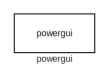
[diagram: root canvas - part 1/6, top left region]
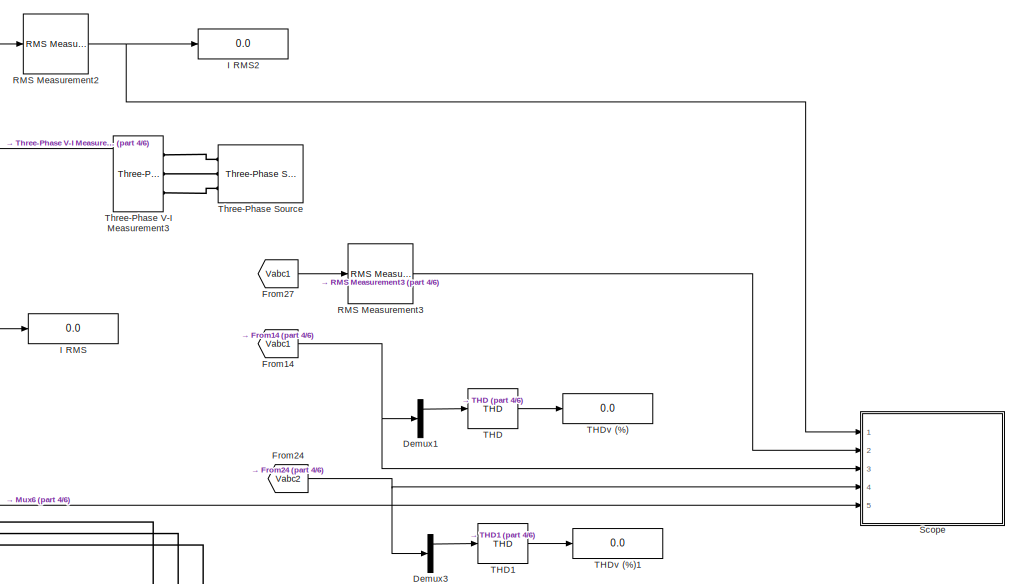
[diagram: root canvas - part 2/6, top right region]
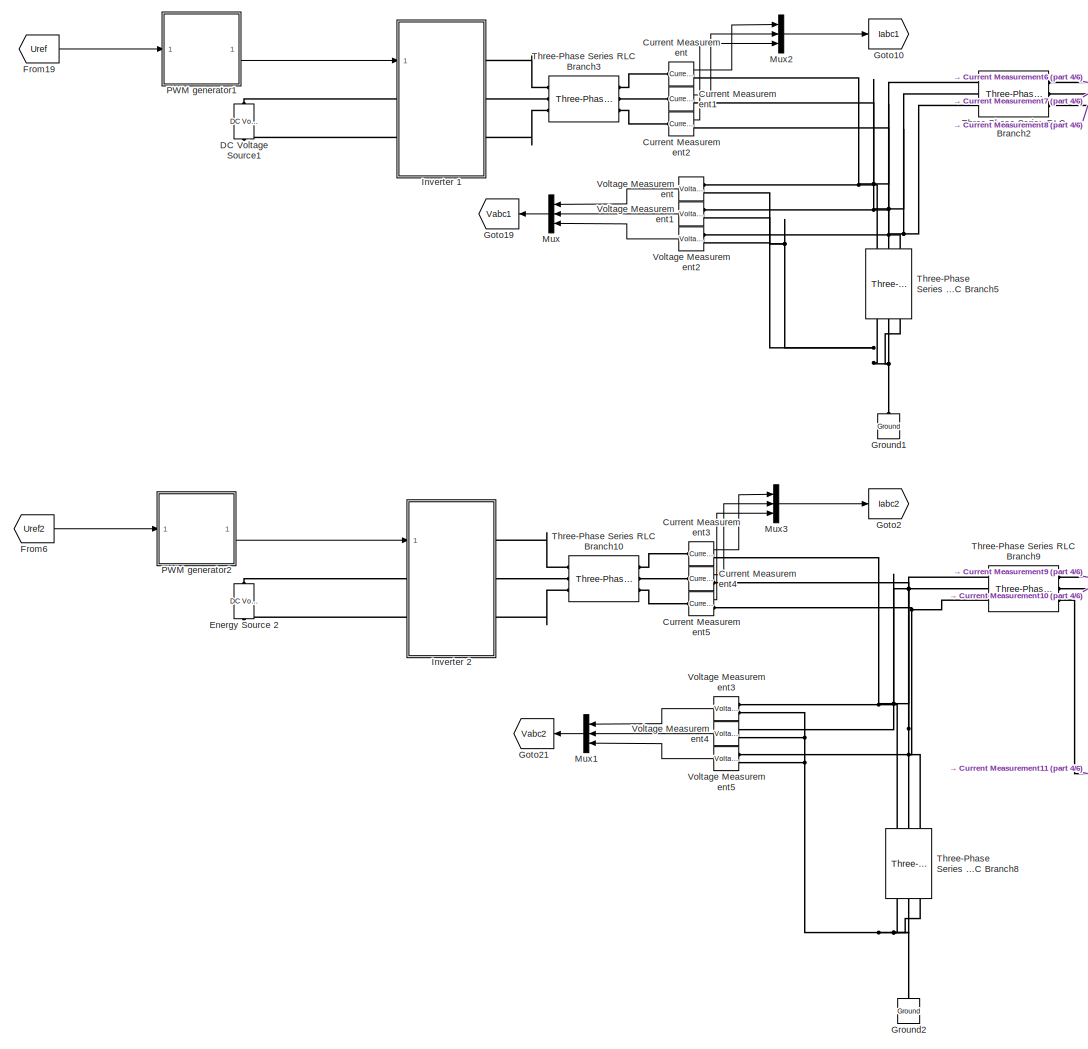
[diagram: root canvas - part 3/6, middle left region]
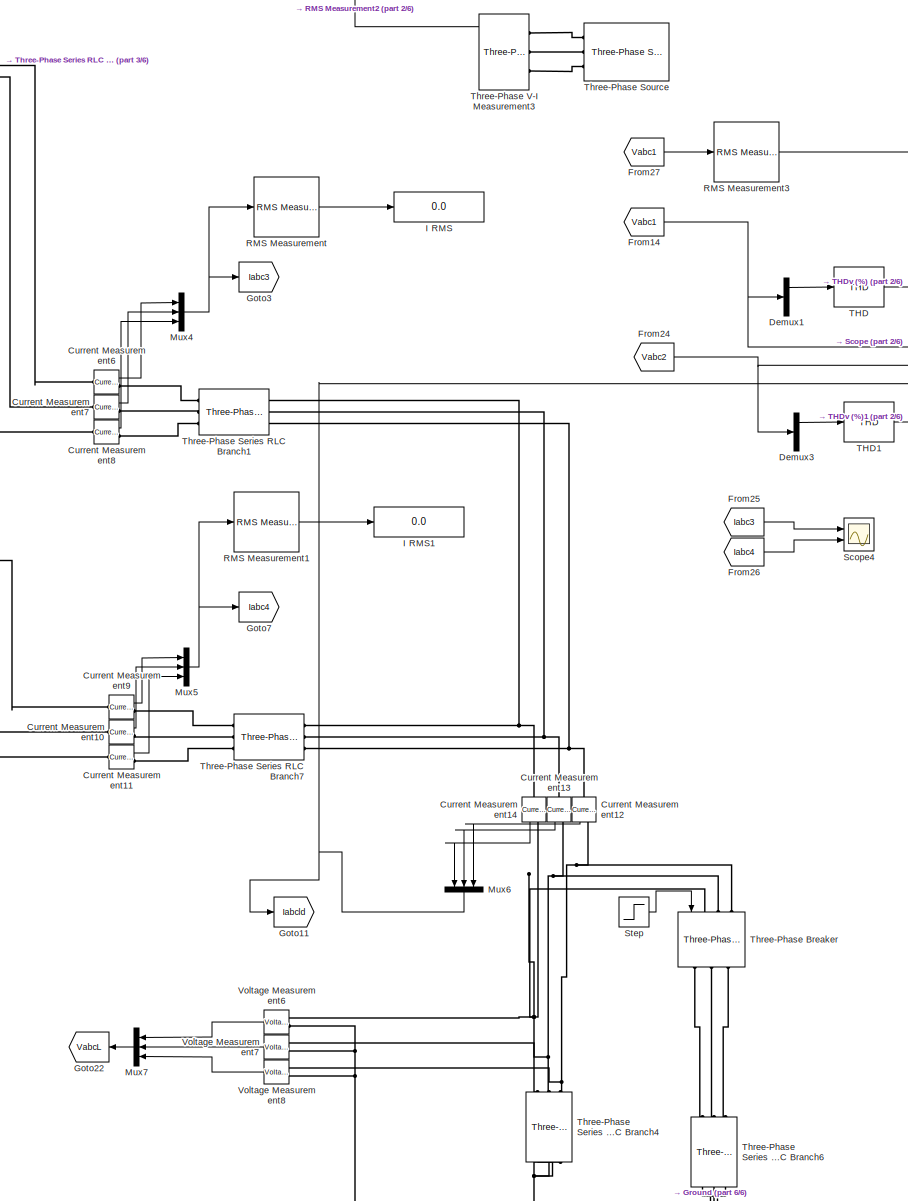
[diagram: root canvas - part 4/6, central region]
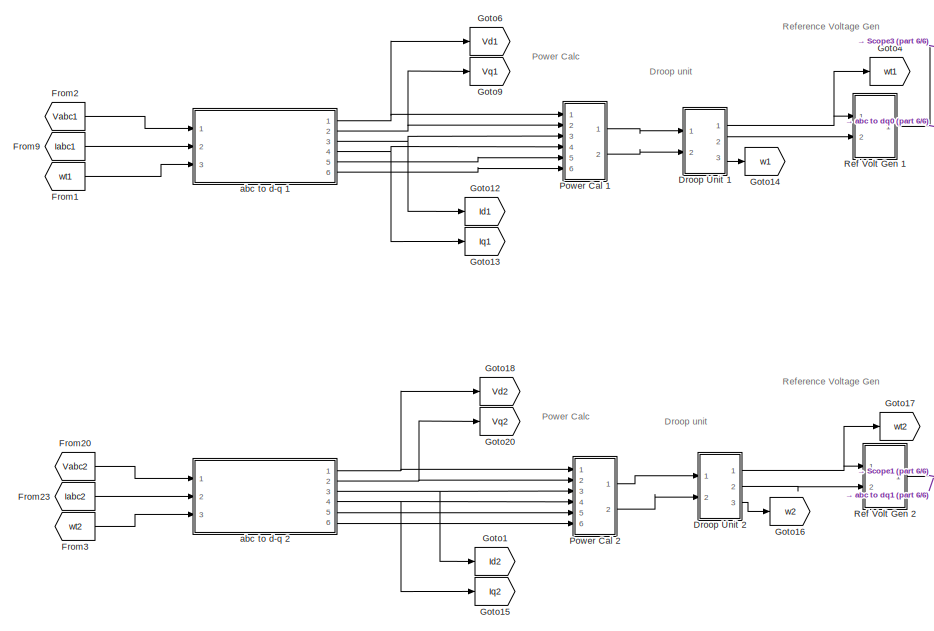
[diagram: root canvas - part 5/6, bottom left region]
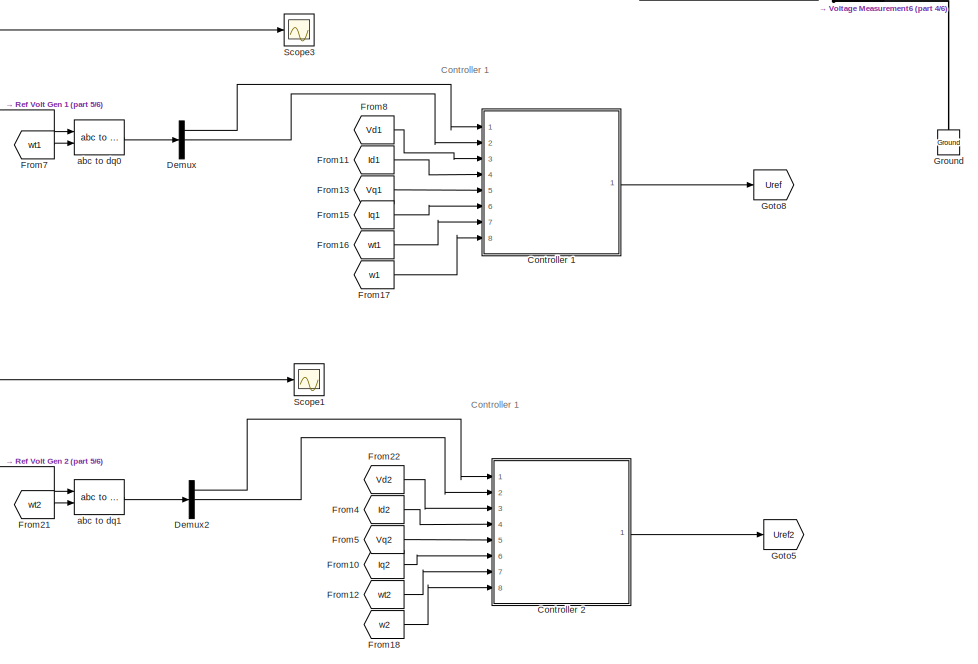
[diagram: root canvas - part 6/6, bottom center region]
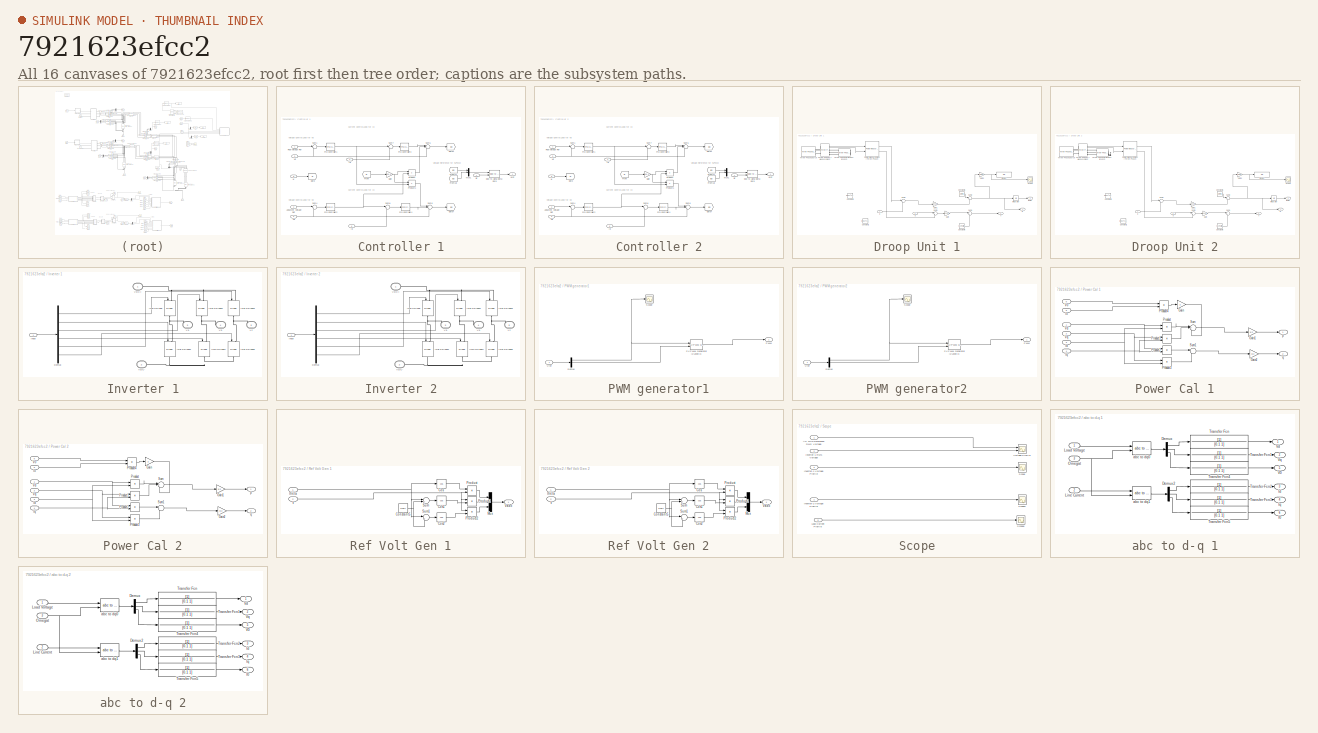
[diagram: thumbnail index - all 16 canvases of the model, root first then tree order]
MODEL slx_7921623efcc2
KIND model
CONFIG AbsTol = auto
CONFIG EnableMultiTasking = off
CONFIG FixedStep = auto
CONFIG MaxStep = auto
CONFIG MinStep = auto
CONFIG RelTol = 1e-3
CONFIG SampleTimeConstraint = Unconstrained
CONFIG SolverName = ode23t
CONFIG StartTime = 0.0
CONFIG StopTime = 1
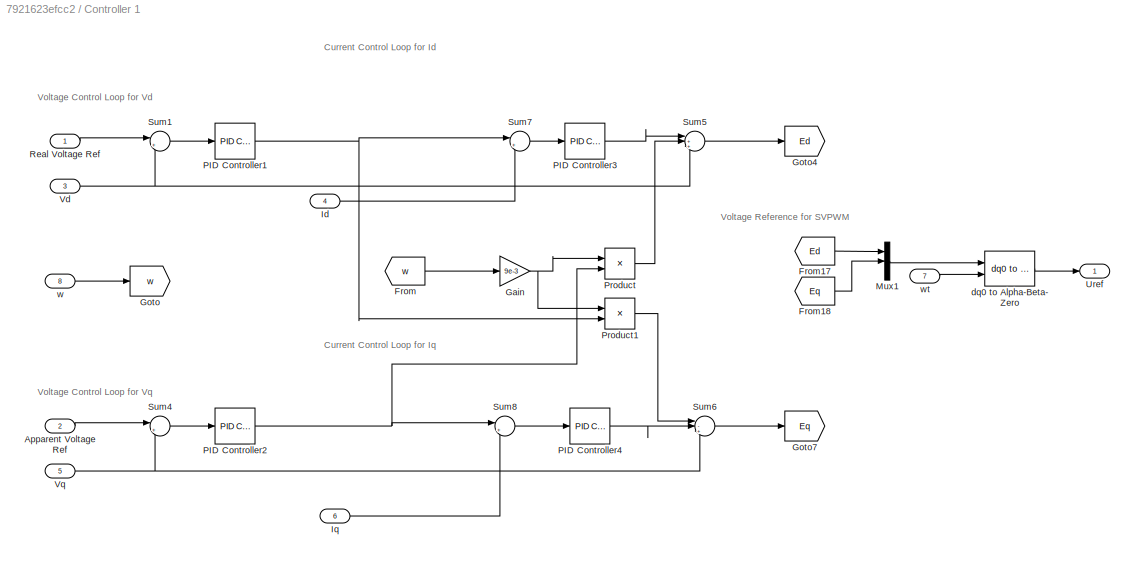
BLOCK [SubSystem] Controller 1
  Ports = [8, 1]
  RequestExecContextInheritance = off
BLOCK [Inport] Controller 1/Apparent Voltage Ref
  Port = 2
BLOCK [From] Controller 1/From
  GotoTag = w
BLOCK [From] Controller 1/From17
  GotoTag = Ed
BLOCK [From] Controller 1/From18
  GotoTag = Eq
BLOCK [Gain] Controller 1/Gain
  Gain = 9e-3
BLOCK [Goto] Controller 1/Goto
  GotoTag = w
BLOCK [Goto] Controller 1/Goto4
  GotoTag = Ed
BLOCK [Goto] Controller 1/Goto7
  GotoTag = Eq
BLOCK [Inport] Controller 1/Id
  Port = 4
BLOCK [Inport] Controller 1/Iq
  Port = 6
BLOCK [Mux] Controller 1/Mux1
  DisplayOption = bar
  Inputs = 3
  Ports = [3, 1]
BLOCK [Reference] Controller 1/PID Controller1  REF=pid_lib/PID Controller
  Ports = [1, 1]
  SourceBlock = pid_lib/PID Controller
  SourceProductBaseCode = SL
  SourceType = PID 1dof
BLOCK [Reference] Controller 1/PID Controller2  REF=pid_lib/PID Controller
  Ports = [1, 1]
  SourceBlock = pid_lib/PID Controller
  SourceProductBaseCode = SL
  SourceType = PID 1dof
BLOCK [Reference] Controller 1/PID Controller3  REF=pid_lib/PID Controller
  Ports = [1, 1]
  SourceBlock = pid_lib/PID Controller
  SourceProductBaseCode = SL
  SourceType = PID 1dof
BLOCK [Reference] Controller 1/PID Controller4  REF=pid_lib/PID Controller
  Ports = [1, 1]
  SourceBlock = pid_lib/PID Controller
  SourceProductBaseCode = SL
  SourceType = PID 1dof
BLOCK [Product] Controller 1/Product
  Ports = [2, 1]
BLOCK [Product] Controller 1/Product1
  Ports = [2, 1]
BLOCK [Inport] Controller 1/Real Voltage Ref
BLOCK [Sum] Controller 1/Sum1
  Inputs = |+-
  Ports = [2, 1]
BLOCK [Sum] Controller 1/Sum4
  Inputs = |+-
  Ports = [2, 1]
BLOCK [Sum] Controller 1/Sum5
  Inputs = |+++
  Ports = [3, 1]
BLOCK [Sum] Controller 1/Sum6
  Inputs = |-++
  Ports = [3, 1]
BLOCK [Sum] Controller 1/Sum7
  Inputs = |+-
  Ports = [2, 1]
BLOCK [Sum] Controller 1/Sum8
  Inputs = |+-
  Ports = [2, 1]
BLOCK [Outport] Controller 1/Uref
BLOCK [Inport] Controller 1/Vd
  Port = 3
BLOCK [Inport] Controller 1/Vq
  Port = 5
BLOCK [Reference] Controller 1/dq0 to Alpha-Beta-Zero  REF=powerlib_meascontrol/Transformations/dq0 to
Alpha-Beta-Zero
  Ports = [2, 1]
  SourceBlock = powerlib_meascontrol/Transformations/dq0 to\nAlpha-Beta-Zero
  SourceProductBaseCode = PS
  SourceType = dq0 to Alpha-Beta-Zero Transformation
BLOCK [Inport] Controller 1/w
  Port = 8
BLOCK [Inport] Controller 1/wt
  Port = 7
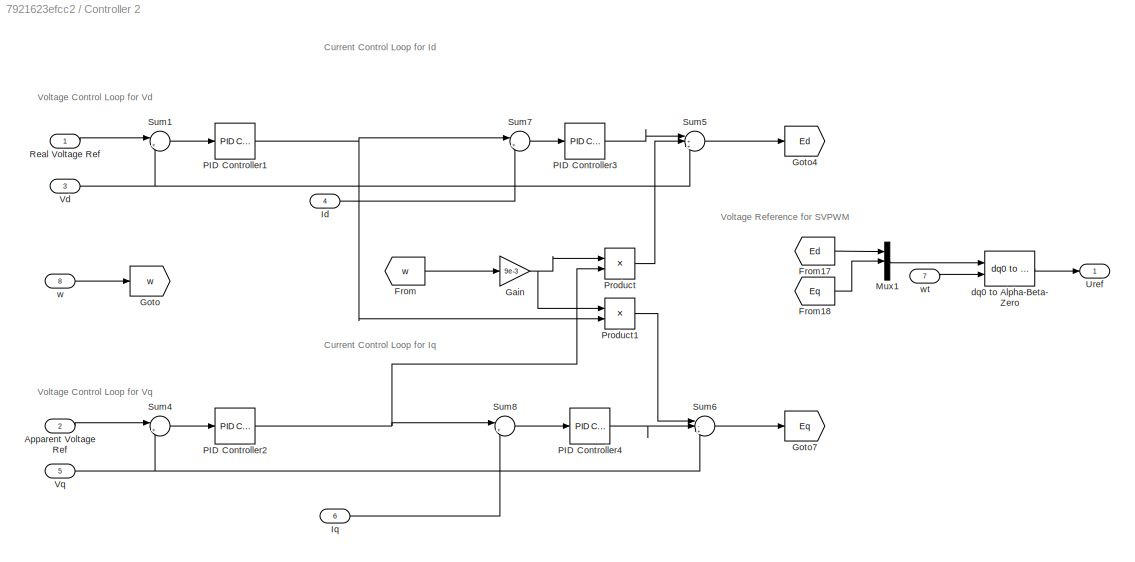
BLOCK [SubSystem] Controller 2
  Ports = [8, 1]
  RequestExecContextInheritance = off
BLOCK [Inport] Controller 2/Apparent Voltage Ref
  Port = 2
BLOCK [From] Controller 2/From
  GotoTag = w
BLOCK [From] Controller 2/From17
  GotoTag = Ed
BLOCK [From] Controller 2/From18
  GotoTag = Eq
BLOCK [Gain] Controller 2/Gain
  Gain = 9e-3
BLOCK [Goto] Controller 2/Goto
  GotoTag = w
BLOCK [Goto] Controller 2/Goto4
  GotoTag = Ed
BLOCK [Goto] Controller 2/Goto7
  GotoTag = Eq
BLOCK [Inport] Controller 2/Id
  Port = 4
BLOCK [Inport] Controller 2/Iq
  Port = 6
BLOCK [Mux] Controller 2/Mux1
  DisplayOption = bar
  Inputs = 3
  Ports = [3, 1]
BLOCK [Reference] Controller 2/PID Controller1  REF=pid_lib/PID Controller
  Ports = [1, 1]
  SourceBlock = pid_lib/PID Controller
  SourceProductBaseCode = SL
  SourceType = PID 1dof
BLOCK [Reference] Controller 2/PID Controller2  REF=pid_lib/PID Controller
  Ports = [1, 1]
  SourceBlock = pid_lib/PID Controller
  SourceProductBaseCode = SL
  SourceType = PID 1dof
BLOCK [Reference] Controller 2/PID Controller3  REF=pid_lib/PID Controller
  Ports = [1, 1]
  SourceBlock = pid_lib/PID Controller
  SourceProductBaseCode = SL
  SourceType = PID 1dof
BLOCK [Reference] Controller 2/PID Controller4  REF=pid_lib/PID Controller
  Ports = [1, 1]
  SourceBlock = pid_lib/PID Controller
  SourceProductBaseCode = SL
  SourceType = PID 1dof
BLOCK [Product] Controller 2/Product
  Ports = [2, 1]
BLOCK [Product] Controller 2/Product1
  Ports = [2, 1]
BLOCK [Inport] Controller 2/Real Voltage Ref
BLOCK [Sum] Controller 2/Sum1
  Inputs = |+-
  Ports = [2, 1]
BLOCK [Sum] Controller 2/Sum4
  Inputs = |+-
  Ports = [2, 1]
BLOCK [Sum] Controller 2/Sum5
  Inputs = |+++
  Ports = [3, 1]
BLOCK [Sum] Controller 2/Sum6
  Inputs = |-++
  Ports = [3, 1]
BLOCK [Sum] Controller 2/Sum7
  Inputs = |+-
  Ports = [2, 1]
BLOCK [Sum] Controller 2/Sum8
  Inputs = |+-
  Ports = [2, 1]
BLOCK [Outport] Controller 2/Uref
BLOCK [Inport] Controller 2/Vd
  Port = 3
BLOCK [Inport] Controller 2/Vq
  Port = 5
BLOCK [Reference] Controller 2/dq0 to Alpha-Beta-Zero  REF=powerlib_meascontrol/Transformations/dq0 to
Alpha-Beta-Zero
  Ports = [2, 1]
  SourceBlock = powerlib_meascontrol/Transformations/dq0 to\nAlpha-Beta-Zero
  SourceProductBaseCode = PS
  SourceType = dq0 to Alpha-Beta-Zero Transformation
BLOCK [Inport] Controller 2/w
  Port = 8
BLOCK [Inport] Controller 2/wt
  Port = 7
BLOCK [Reference] Current Measurement  REF=powerlib/Measurements/Current Measurement
  Ports = [0, 1, 0, 0, 0, 1, 1]
  SourceBlock = powerlib/Measurements/Current Measurement
  SourceProductBaseCode = PS
  SourceType = Current Measurement
  UserDataPersistent = on
BLOCK [Reference] Current Measurement1  REF=powerlib/Measurements/Current Measurement
  Ports = [0, 1, 0, 0, 0, 1, 1]
  SourceBlock = powerlib/Measurements/Current Measurement
  SourceProductBaseCode = PS
  SourceType = Current Measurement
  UserDataPersistent = on
BLOCK [Reference] Current Measurement10  REF=powerlib/Measurements/Current Measurement
  Ports = [0, 1, 0, 0, 0, 1, 1]
  SourceBlock = powerlib/Measurements/Current Measurement
  SourceProductBaseCode = PS
  SourceType = Current Measurement
  UserDataPersistent = on
BLOCK [Reference] Current Measurement11  REF=powerlib/Measurements/Current Measurement
  Ports = [0, 1, 0, 0, 0, 1, 1]
  SourceBlock = powerlib/Measurements/Current Measurement
  SourceProductBaseCode = PS
  SourceType = Current Measurement
  UserDataPersistent = on
BLOCK [Reference] Current Measurement12  REF=powerlib/Measurements/Current Measurement
  NameLocation = left
  Ports = [0, 1, 0, 0, 0, 1, 1]
  SourceBlock = powerlib/Measurements/Current Measurement
  SourceProductBaseCode = PS
  SourceType = Current Measurement
  UserDataPersistent = on
BLOCK [Reference] Current Measurement13  REF=powerlib/Measurements/Current Measurement
  NameLocation = left
  Ports = [0, 1, 0, 0, 0, 1, 1]
  SourceBlock = powerlib/Measurements/Current Measurement
  SourceProductBaseCode = PS
  SourceType = Current Measurement
  UserDataPersistent = on
BLOCK [Reference] Current Measurement14  REF=powerlib/Measurements/Current Measurement
  NameLocation = left
  Ports = [0, 1, 0, 0, 0, 1, 1]
  SourceBlock = powerlib/Measurements/Current Measurement
  SourceProductBaseCode = PS
  SourceType = Current Measurement
  UserDataPersistent = on
BLOCK [Reference] Current Measurement2  REF=powerlib/Measurements/Current Measurement
  Ports = [0, 1, 0, 0, 0, 1, 1]
  SourceBlock = powerlib/Measurements/Current Measurement
  SourceProductBaseCode = PS
  SourceType = Current Measurement
  UserDataPersistent = on
BLOCK [Reference] Current Measurement3  REF=powerlib/Measurements/Current Measurement
  Ports = [0, 1, 0, 0, 0, 1, 1]
  SourceBlock = powerlib/Measurements/Current Measurement
  SourceProductBaseCode = PS
  SourceType = Current Measurement
  UserDataPersistent = on
BLOCK [Reference] Current Measurement4  REF=powerlib/Measurements/Current Measurement
  Ports = [0, 1, 0, 0, 0, 1, 1]
  SourceBlock = powerlib/Measurements/Current Measurement
  SourceProductBaseCode = PS
  SourceType = Current Measurement
  UserDataPersistent = on
BLOCK [Reference] Current Measurement5  REF=powerlib/Measurements/Current Measurement
  Ports = [0, 1, 0, 0, 0, 1, 1]
  SourceBlock = powerlib/Measurements/Current Measurement
  SourceProductBaseCode = PS
  SourceType = Current Measurement
  UserDataPersistent = on
BLOCK [Reference] Current Measurement6  REF=powerlib/Measurements/Current Measurement
  Ports = [0, 1, 0, 0, 0, 1, 1]
  SourceBlock = powerlib/Measurements/Current Measurement
  SourceProductBaseCode = PS
  SourceType = Current Measurement
  UserDataPersistent = on
BLOCK [Reference] Current Measurement7  REF=powerlib/Measurements/Current Measurement
  Ports = [0, 1, 0, 0, 0, 1, 1]
  SourceBlock = powerlib/Measurements/Current Measurement
  SourceProductBaseCode = PS
  SourceType = Current Measurement
  UserDataPersistent = on
BLOCK [Reference] Current Measurement8  REF=powerlib/Measurements/Current Measurement
  Ports = [0, 1, 0, 0, 0, 1, 1]
  SourceBlock = powerlib/Measurements/Current Measurement
  SourceProductBaseCode = PS
  SourceType = Current Measurement
  UserDataPersistent = on
BLOCK [Reference] Current Measurement9  REF=powerlib/Measurements/Current Measurement
  Ports = [0, 1, 0, 0, 0, 1, 1]
  SourceBlock = powerlib/Measurements/Current Measurement
  SourceProductBaseCode = PS
  SourceType = Current Measurement
  UserDataPersistent = on
BLOCK [Reference] DC Voltage Source1  REF=powerlib/Electrical
Sources/DC Voltage Source
  NameLocation = right
  Ports = [0, 0, 0, 0, 0, 1, 1]
  SourceBlock = powerlib/Electrical\nSources/DC Voltage Source
  SourceProductBaseCode = PS
  SourceType = DC Voltage Source
BLOCK [Demux] Demux
  Outputs = 3
  Ports = [1, 3]
BLOCK [Demux] Demux1
  Outputs = 3
  Ports = [1, 3]
BLOCK [Demux] Demux2
  Outputs = 3
  Ports = [1, 3]
BLOCK [Demux] Demux3
  Outputs = 3
  Ports = [1, 3]
BLOCK [SubSystem] Droop Unit 1
  Ports = [2, 3]
  RequestExecContextInheritance = off
BLOCK [Constant] Droop Unit 1/Constant1
  Value = (3*(Vac)^2)/(2*Ll)
BLOCK [Constant] Droop Unit 1/Constant2
  Value = (3*(Vac)^2)/(2*Rld)
BLOCK [Constant] Droop Unit 1/Constant5
  Value = Vac*sqrt(2)
BLOCK [Constant] Droop Unit 1/Constant6
  Value = 2*pi*Frq
BLOCK [Display] Droop Unit 1/Display
  Decimation = 1
  Ports = [1]
BLOCK [Gain] Droop Unit 1/Gain
  Gain = 20e-3
BLOCK [Gain] Droop Unit 1/Gain1
  Gain = 10e-6
BLOCK [Gain] Droop Unit 1/Gain2
  Gain = 1/(2*pi)
BLOCK [Integrator] Droop Unit 1/Integrator
  Ports = [1, 1]
BLOCK [Reference] Droop Unit 1/Power Measurement (Three-Phase)  REF=eePowerMeasurement/Power Measurement
(Three-Phase)
  Ports = [2, 2]
  SourceBlock = eePowerMeasurement/Power Measurement\n(Three-Phase)
  SourceProductBaseCode = PS
  SourceType = Power Measurement (Three-Phase)
BLOCK [Scope] Droop Unit 1/Scope
  Floating = off
  NumInputPorts = 1
  Ports = [1]
  ScopeSpecificationString = Simulink.scopes.TimeScopeBlockCfg('CurrentConfiguration', extmgr.ConfigurationSet(extmgr.Configuration('Core','General UI',true),extmgr.Configuration('Core','Source UI',true),extmgr.Configuration('Sources','WiredSimulink',true,'DataLoggingVariableName','ScopeData1'),extmgr.Configuration('Visuals','Time Domain',true,'SerializedDisplays',{struct('MinYLimReal','49.99754','MaxYLimReal','49.99952','YLa...<+1472ch>
BLOCK [Sum] Droop Unit 1/Sum1
  Inputs = |-+
  Ports = [2, 1]
BLOCK [Sum] Droop Unit 1/Sum2
  Inputs = |+-
  Ports = [2, 1]
BLOCK [Sum] Droop Unit 1/Sum3
  Inputs = |-+
  Ports = [2, 1]
BLOCK [Sum] Droop Unit 1/Sum4
  Inputs = |+-
  Ports = [2, 1]
BLOCK [Reference] Droop Unit 1/Three-Phase Series RLC Branch  REF=powerlib/Elements/Three-Phase
Series RLC Branch
  AttributesFormatString = \n
  Ports = [0, 0, 0, 0, 0, 3, 3]
  SourceBlock = powerlib/Elements/Three-Phase\nSeries RLC Branch
  SourceProductBaseCode = PS
  SourceType = Three-Phase Series RLC Branch
BLOCK [Reference] Droop Unit 1/Three-Phase Source  REF=powerlib/Electrical
Sources/Three-Phase Source
  Ports = [0, 0, 0, 0, 0, 0, 3]
  SourceBlock = powerlib/Electrical\nSources/Three-Phase Source
  SourceProductBaseCode = PS
  SourceType = Three-Phase Source
BLOCK [Reference] Droop Unit 1/Three-Phase V-I Measurement  REF=powerlib/Measurements/Three-Phase
V-I Measurement
  Ports = [0, 2, 0, 0, 0, 3, 3]
  SourceBlock = powerlib/Measurements/Three-Phase\nV-I Measurement
  SourceProductBaseCode = PS
  SourceType = Three-Phase VI Measurement
BLOCK [Outport] Droop Unit 1/V
  Port = 2
BLOCK [Inport] Droop Unit 1/p
BLOCK [Inport] Droop Unit 1/q
  Port = 2
BLOCK [Outport] Droop Unit 1/thetat
BLOCK [Outport] Droop Unit 1/w
  Port = 3
BLOCK [SubSystem] Droop Unit 2
  Ports = [2, 3]
  RequestExecContextInheritance = off
BLOCK [Constant] Droop Unit 2/Constant1
  Value = (3*(Vac)^2)/(2*Ll)
BLOCK [Constant] Droop Unit 2/Constant2
  Value = (3*(Vac)^2)/(2*Rld)
BLOCK [Constant] Droop Unit 2/Constant5
  Value = Vac*sqrt(2)
BLOCK [Constant] Droop Unit 2/Constant6
  Value = 2*pi*Frq
BLOCK [Display] Droop Unit 2/Display
  Decimation = 1
  Ports = [1]
BLOCK [Gain] Droop Unit 2/Gain
  Gain = 20e-3
BLOCK [Gain] Droop Unit 2/Gain1
  Gain = 10e-6
BLOCK [Gain] Droop Unit 2/Gain2
  Gain = 1/(2*pi)
BLOCK [Integrator] Droop Unit 2/Integrator
  Ports = [1, 1]
BLOCK [Reference] Droop Unit 2/Power Measurement (Three-Phase)  REF=eePowerMeasurement/Power Measurement
(Three-Phase)
  Ports = [2, 2]
  SourceBlock = eePowerMeasurement/Power Measurement\n(Three-Phase)
  SourceProductBaseCode = PS
  SourceType = Power Measurement (Three-Phase)
BLOCK [Scope] Droop Unit 2/Scope
  Floating = off
  NumInputPorts = 1
  Ports = [1]
  ScopeSpecificationString = Simulink.scopes.TimeScopeBlockCfg('CurrentConfiguration', extmgr.ConfigurationSet(extmgr.Configuration('Core','General UI',true),extmgr.Configuration('Core','Source UI',true),extmgr.Configuration('Sources','WiredSimulink',true,'DataLoggingVariableName','ScopeData1'),extmgr.Configuration('Visuals','Time Domain',true,'SerializedDisplays',{struct('MinYLimReal','49.99754','MaxYLimReal','49.99952','YLa...<+1472ch>
BLOCK [Sum] Droop Unit 2/Sum1
  Inputs = |-+
  Ports = [2, 1]
BLOCK [Sum] Droop Unit 2/Sum2
  Inputs = |+-
  Ports = [2, 1]
BLOCK [Sum] Droop Unit 2/Sum3
  Inputs = |-+
  Ports = [2, 1]
BLOCK [Sum] Droop Unit 2/Sum4
  Inputs = |+-
  Ports = [2, 1]
BLOCK [Reference] Droop Unit 2/Three-Phase Series RLC Branch  REF=powerlib/Elements/Three-Phase
Series RLC Branch
  AttributesFormatString = \n
  Ports = [0, 0, 0, 0, 0, 3, 3]
  SourceBlock = powerlib/Elements/Three-Phase\nSeries RLC Branch
  SourceProductBaseCode = PS
  SourceType = Three-Phase Series RLC Branch
BLOCK [Reference] Droop Unit 2/Three-Phase Source  REF=powerlib/Electrical
Sources/Three-Phase Source
  Ports = [0, 0, 0, 0, 0, 0, 3]
  SourceBlock = powerlib/Electrical\nSources/Three-Phase Source
  SourceProductBaseCode = PS
  SourceType = Three-Phase Source
BLOCK [Reference] Droop Unit 2/Three-Phase V-I Measurement  REF=powerlib/Measurements/Three-Phase
V-I Measurement
  Ports = [0, 2, 0, 0, 0, 3, 3]
  SourceBlock = powerlib/Measurements/Three-Phase\nV-I Measurement
  SourceProductBaseCode = PS
  SourceType = Three-Phase VI Measurement
BLOCK [Outport] Droop Unit 2/V
  Port = 2
BLOCK [Inport] Droop Unit 2/p
BLOCK [Inport] Droop Unit 2/q
  Port = 2
BLOCK [Outport] Droop Unit 2/thetat
BLOCK [Outport] Droop Unit 2/w
  Port = 3
BLOCK [Reference] Energy Source 2  REF=powerlib/Electrical
Sources/DC Voltage Source
  NameLocation = right
  Ports = [0, 0, 0, 0, 0, 1, 1]
  SourceBlock = powerlib/Electrical\nSources/DC Voltage Source
  SourceProductBaseCode = PS
  SourceType = DC Voltage Source
BLOCK [From] From1
  GotoTag = wt1
BLOCK [From] From10
  GotoTag = Iq2
BLOCK [From] From11
  GotoTag = Id1
BLOCK [From] From12
  GotoTag = wt2
BLOCK [From] From13
  GotoTag = Vq1
BLOCK [From] From14
  GotoTag = Vabc1
BLOCK [From] From15
  GotoTag = Iq1
BLOCK [From] From16
  GotoTag = wt1
BLOCK [From] From17
  GotoTag = w1
BLOCK [From] From18
  GotoTag = w2
BLOCK [From] From19
  GotoTag = Uref
BLOCK [From] From2
  GotoTag = Vabc1
BLOCK [From] From20
  GotoTag = Vabc2
BLOCK [From] From21
  GotoTag = wt2
BLOCK [From] From22
  GotoTag = Vd2
BLOCK [From] From23
  GotoTag = Iabc2
BLOCK [From] From24
  GotoTag = Vabc2
BLOCK [From] From25
  GotoTag = Iabc3
BLOCK [From] From26
  GotoTag = Iabc4
BLOCK [From] From27
  GotoTag = Vabc1
BLOCK [From] From3
  GotoTag = wt2
BLOCK [From] From4
  GotoTag = Id2
BLOCK [From] From5
  GotoTag = Vq2
BLOCK [From] From6
  GotoTag = Uref2
BLOCK [From] From7
  GotoTag = wt1
BLOCK [From] From8
  GotoTag = Vd1
BLOCK [From] From9
  GotoTag = Iabc1
BLOCK [Goto] Goto1
  GotoTag = Id2
BLOCK [Goto] Goto10
  GotoTag = Iabc1
BLOCK [Goto] Goto11
  GotoTag = Iabcld
BLOCK [Goto] Goto12
  GotoTag = Id1
BLOCK [Goto] Goto13
  GotoTag = Iq1
BLOCK [Goto] Goto14
  GotoTag = w1
BLOCK [Goto] Goto15
  GotoTag = Iq2
BLOCK [Goto] Goto16
  GotoTag = w2
BLOCK [Goto] Goto17
  GotoTag = wt2
BLOCK [Goto] Goto18
  GotoTag = Vd2
BLOCK [Goto] Goto19
  GotoTag = Vabc1
BLOCK [Goto] Goto2
  GotoTag = Iabc2
BLOCK [Goto] Goto20
  GotoTag = Vq2
BLOCK [Goto] Goto21
  GotoTag = Vabc2
BLOCK [Goto] Goto22
  GotoTag = VabcL
BLOCK [Goto] Goto3
  GotoTag = Iabc3
BLOCK [Goto] Goto4
  GotoTag = wt1
BLOCK [Goto] Goto5
  GotoTag = Uref2
BLOCK [Goto] Goto6
  GotoTag = Vd1
BLOCK [Goto] Goto7
  GotoTag = Iabc4
BLOCK [Goto] Goto8
  GotoTag = Uref
BLOCK [Goto] Goto9
  GotoTag = Vq1
BLOCK [Reference] Ground  REF=powerlib/Elements/Ground
  NameLocation = right
  Ports = [0, 0, 0, 0, 0, 1]
  SourceBlock = powerlib/Elements/Ground
  SourceProductBaseCode = PS
  SourceType = Ground
BLOCK [Reference] Ground1  REF=powerlib/Elements/Ground
  NameLocation = right
  Ports = [0, 0, 0, 0, 0, 1]
  SourceBlock = powerlib/Elements/Ground
  SourceProductBaseCode = PS
  SourceType = Ground
BLOCK [Reference] Ground2  REF=powerlib/Elements/Ground
  NameLocation = right
  Ports = [0, 0, 0, 0, 0, 1]
  SourceBlock = powerlib/Elements/Ground
  SourceProductBaseCode = PS
  SourceType = Ground
BLOCK [Display] I RMS
  Decimation = 1
  Ports = [1]
BLOCK [Display] I RMS1
  Decimation = 1
  Ports = [1]
BLOCK [Display] I RMS2
  Decimation = 1
  Ports = [1]
BLOCK [SubSystem] Inverter 1
  Ports = [1, 0, 0, 0, 0, 2, 3]
  RequestExecContextInheritance = off
BLOCK [Demux] Inverter 1/Demux
  Outputs = 6
  Ports = [1, 6]
BLOCK [Reference] Inverter 1/IGBT//Diode  REF=powerlib/Power
Electronics/IGBT//Diode
  NameLocation = left
  Ports = [1, 0, 0, 0, 0, 1, 1]
  SourceBlock = powerlib/Power\nElectronics/IGBT//Diode
  SourceProductBaseCode = PS
  SourceType = IGBT/Diode
BLOCK [Reference] Inverter 1/IGBT//Diode1  REF=powerlib/Power
Electronics/IGBT//Diode
  NameLocation = left
  Ports = [1, 0, 0, 0, 0, 1, 1]
  SourceBlock = powerlib/Power\nElectronics/IGBT//Diode
  SourceProductBaseCode = PS
  SourceType = IGBT/Diode
BLOCK [Reference] Inverter 1/IGBT//Diode2  REF=powerlib/Power
Electronics/IGBT//Diode
  NameLocation = left
  Ports = [1, 0, 0, 0, 0, 1, 1]
  SourceBlock = powerlib/Power\nElectronics/IGBT//Diode
  SourceProductBaseCode = PS
  SourceType = IGBT/Diode
BLOCK [Reference] Inverter 1/IGBT//Diode3  REF=powerlib/Power
Electronics/IGBT//Diode
  NameLocation = left
  Ports = [1, 0, 0, 0, 0, 1, 1]
  SourceBlock = powerlib/Power\nElectronics/IGBT//Diode
  SourceProductBaseCode = PS
  SourceType = IGBT/Diode
BLOCK [Reference] Inverter 1/IGBT//Diode4  REF=powerlib/Power
Electronics/IGBT//Diode
  NameLocation = left
  Ports = [1, 0, 0, 0, 0, 1, 1]
  SourceBlock = powerlib/Power\nElectronics/IGBT//Diode
  SourceProductBaseCode = PS
  SourceType = IGBT/Diode
BLOCK [Reference] Inverter 1/IGBT//Diode5  REF=powerlib/Power
Electronics/IGBT//Diode
  NameLocation = left
  Ports = [1, 0, 0, 0, 0, 1, 1]
  SourceBlock = powerlib/Power\nElectronics/IGBT//Diode
  SourceProductBaseCode = PS
  SourceType = IGBT/Diode
BLOCK [Inport] Inverter 1/Input
BLOCK [PMIOPort] Inverter 1/VDC+
  Side = Left
  Tag = PMCPort
BLOCK [PMIOPort] Inverter 1/VDC-
  Port = 2
  Side = Left
  Tag = PMCPort
BLOCK [PMIOPort] Inverter 1/Va
  Port = 3
  Side = Right
  Tag = PMCPort
BLOCK [PMIOPort] Inverter 1/Vb
  Port = 4
  Side = Right
  Tag = PMCPort
BLOCK [PMIOPort] Inverter 1/Vc
  Port = 5
  Side = Right
  Tag = PMCPort
BLOCK [SubSystem] Inverter 2
  Ports = [1, 0, 0, 0, 0, 2, 3]
  RequestExecContextInheritance = off
BLOCK [Demux] Inverter 2/Demux
  Outputs = 6
  Ports = [1, 6]
BLOCK [Reference] Inverter 2/IGBT//Diode  REF=powerlib/Power
Electronics/IGBT//Diode
  NameLocation = left
  Ports = [1, 0, 0, 0, 0, 1, 1]
  SourceBlock = powerlib/Power\nElectronics/IGBT//Diode
  SourceProductBaseCode = PS
  SourceType = IGBT/Diode
BLOCK [Reference] Inverter 2/IGBT//Diode1  REF=powerlib/Power
Electronics/IGBT//Diode
  NameLocation = left
  Ports = [1, 0, 0, 0, 0, 1, 1]
  SourceBlock = powerlib/Power\nElectronics/IGBT//Diode
  SourceProductBaseCode = PS
  SourceType = IGBT/Diode
BLOCK [Reference] Inverter 2/IGBT//Diode2  REF=powerlib/Power
Electronics/IGBT//Diode
  NameLocation = left
  Ports = [1, 0, 0, 0, 0, 1, 1]
  SourceBlock = powerlib/Power\nElectronics/IGBT//Diode
  SourceProductBaseCode = PS
  SourceType = IGBT/Diode
BLOCK [Reference] Inverter 2/IGBT//Diode3  REF=powerlib/Power
Electronics/IGBT//Diode
  NameLocation = left
  Ports = [1, 0, 0, 0, 0, 1, 1]
  SourceBlock = powerlib/Power\nElectronics/IGBT//Diode
  SourceProductBaseCode = PS
  SourceType = IGBT/Diode
BLOCK [Reference] Inverter 2/IGBT//Diode4  REF=powerlib/Power
Electronics/IGBT//Diode
  NameLocation = left
  Ports = [1, 0, 0, 0, 0, 1, 1]
  SourceBlock = powerlib/Power\nElectronics/IGBT//Diode
  SourceProductBaseCode = PS
  SourceType = IGBT/Diode
BLOCK [Reference] Inverter 2/IGBT//Diode5  REF=powerlib/Power
Electronics/IGBT//Diode
  NameLocation = left
  Ports = [1, 0, 0, 0, 0, 1, 1]
  SourceBlock = powerlib/Power\nElectronics/IGBT//Diode
  SourceProductBaseCode = PS
  SourceType = IGBT/Diode
BLOCK [Inport] Inverter 2/Input
BLOCK [PMIOPort] Inverter 2/VDC+
  Side = Left
  Tag = PMCPort
BLOCK [PMIOPort] Inverter 2/VDC-
  Port = 2
  Side = Left
  Tag = PMCPort
BLOCK [PMIOPort] Inverter 2/Va
  Port = 3
  Side = Right
  Tag = PMCPort
BLOCK [PMIOPort] Inverter 2/Vb
  Port = 4
  Side = Right
  Tag = PMCPort
BLOCK [PMIOPort] Inverter 2/Vc
  Port = 5
  Side = Right
  Tag = PMCPort
BLOCK [Mux] Mux
  DisplayOption = bar
  Inputs = 3
  Ports = [3, 1]
BLOCK [Mux] Mux1
  DisplayOption = bar
  Inputs = 3
  Ports = [3, 1]
BLOCK [Mux] Mux2
  DisplayOption = bar
  Inputs = 3
  Ports = [3, 1]
BLOCK [Mux] Mux3
  DisplayOption = bar
  Inputs = 3
  Ports = [3, 1]
BLOCK [Mux] Mux4
  DisplayOption = bar
  Inputs = 3
  Ports = [3, 1]
BLOCK [Mux] Mux5
  DisplayOption = bar
  Inputs = 3
  Ports = [3, 1]
BLOCK [Mux] Mux6
  DisplayOption = bar
  Inputs = 3
  NameLocation = left
  Ports = [3, 1]
BLOCK [Mux] Mux7
  DisplayOption = bar
  Inputs = 3
  Ports = [3, 1]
BLOCK [SubSystem] PWM generator1
  Ports = [1, 1]
  RequestExecContextInheritance = off
BLOCK [Demux] PWM generator1/Demux
  Outputs = 3
  Ports = [1, 3]
BLOCK [Outport] PWM generator1/PWM
BLOCK [Reference] PWM generator1/SVPWM Generator (2-Level)3  REF=powerlib_meascontrol/Pulse & Signal
Generators/SVPWM Generator
(2-Level)
  Ports = [2, 1]
  SourceBlock = powerlib_meascontrol/Pulse & Signal\nGenerators/SVPWM Generator\n(2-Level)
  SourceProductBaseCode = PS
  SourceType = SVPWM Generator (2-Level)
BLOCK [Scope] PWM generator1/Scope
  Floating = off
  NumInputPorts = 1
  Ports = [1]
  ScopeSpecificationString = Simulink.scopes.TimeScopeBlockCfg('CurrentConfiguration', extmgr.ConfigurationSet(extmgr.Configuration('Core','General UI',true),extmgr.Configuration('Core','Source UI',true),extmgr.Configuration('Sources','WiredSimulink',true,'DataLoggingVariableName','ScopeData1'),extmgr.Configuration('Visuals','Time Domain',true,'SerializedDisplays',{struct('MinYLimReal','-26835244329010.69531','MaxYLimReal','2...<+1497ch>
BLOCK [Inport] PWM generator1/Vref
BLOCK [SubSystem] PWM generator2
  Ports = [1, 1]
  RequestExecContextInheritance = off
BLOCK [Demux] PWM generator2/Demux
  Outputs = 3
  Ports = [1, 3]
BLOCK [Outport] PWM generator2/PWM
BLOCK [Reference] PWM generator2/SVPWM Generator (2-Level)3  REF=powerlib_meascontrol/Pulse & Signal
Generators/SVPWM Generator
(2-Level)
  Ports = [2, 1]
  SourceBlock = powerlib_meascontrol/Pulse & Signal\nGenerators/SVPWM Generator\n(2-Level)
  SourceProductBaseCode = PS
  SourceType = SVPWM Generator (2-Level)
BLOCK [Scope] PWM generator2/Scope
  Floating = off
  NumInputPorts = 1
  Ports = [1]
  ScopeSpecificationString = Simulink.scopes.TimeScopeBlockCfg('CurrentConfiguration', extmgr.ConfigurationSet(extmgr.Configuration('Core','General UI',true),extmgr.Configuration('Core','Source UI',true),extmgr.Configuration('Sources','WiredSimulink',true,'DataLoggingVariableName','ScopeData1'),extmgr.Configuration('Visuals','Time Domain',true,'SerializedDisplays',{struct('MinYLimReal','-892.75977','MaxYLimReal','895.15715','...<+1409ch>
BLOCK [Inport] PWM generator2/Vref
BLOCK [SubSystem] Power Cal 1
  Ports = [6, 2]
  RequestExecContextInheritance = off
BLOCK [Gain] Power Cal 1/Gain
  Gain = 2
BLOCK [Gain] Power Cal 1/Gain1
  Gain = 3/2
BLOCK [Gain] Power Cal 1/Gain2
  Gain = 3/2
BLOCK [Inport] Power Cal 1/I0
  Port = 6
BLOCK [Inport] Power Cal 1/Id
  Port = 3
BLOCK [Inport] Power Cal 1/Iq
  Port = 4
BLOCK [Product] Power Cal 1/Product
  Ports = [2, 1]
BLOCK [Product] Power Cal 1/Product1
  Ports = [2, 1]
BLOCK [Product] Power Cal 1/Product2
  Ports = [2, 1]
BLOCK [Product] Power Cal 1/Product3
  Ports = [2, 1]
BLOCK [Product] Power Cal 1/Product4
  Ports = [2, 1]
BLOCK [Sum] Power Cal 1/Sum
  Inputs = |+++
  Ports = [3, 1]
BLOCK [Sum] Power Cal 1/Sum1
  Inputs = |-+
  Ports = [2, 1]
BLOCK [Inport] Power Cal 1/V0
  Port = 5
BLOCK [Inport] Power Cal 1/Vd
BLOCK [Inport] Power Cal 1/Vq
  Port = 2
BLOCK [Outport] Power Cal 1/p
BLOCK [Outport] Power Cal 1/q
  Port = 2
BLOCK [SubSystem] Power Cal 2
  Ports = [6, 2]
  RequestExecContextInheritance = off
BLOCK [Gain] Power Cal 2/Gain
  Gain = 2
BLOCK [Gain] Power Cal 2/Gain1
  Gain = 3/2
BLOCK [Gain] Power Cal 2/Gain2
  Gain = 3/2
BLOCK [Inport] Power Cal 2/I0
  Port = 6
BLOCK [Inport] Power Cal 2/Id
  Port = 3
BLOCK [Inport] Power Cal 2/Iq
  Port = 4
BLOCK [Product] Power Cal 2/Product
  Ports = [2, 1]
BLOCK [Product] Power Cal 2/Product1
  Ports = [2, 1]
BLOCK [Product] Power Cal 2/Product2
  Ports = [2, 1]
BLOCK [Product] Power Cal 2/Product3
  Ports = [2, 1]
BLOCK [Product] Power Cal 2/Product4
  Ports = [2, 1]
BLOCK [Sum] Power Cal 2/Sum
  Inputs = |+++
  Ports = [3, 1]
BLOCK [Sum] Power Cal 2/Sum1
  Inputs = |-+
  Ports = [2, 1]
BLOCK [Inport] Power Cal 2/V0
  Port = 5
BLOCK [Inport] Power Cal 2/Vd
BLOCK [Inport] Power Cal 2/Vq
  Port = 2
BLOCK [Outport] Power Cal 2/p
BLOCK [Outport] Power Cal 2/q
  Port = 2
BLOCK [Reference] RMS Measurement  REF=eeRmsMeasurement/RMS
Measurement
  Ports = [1, 1]
  SourceBlock = eeRmsMeasurement/RMS\nMeasurement
  SourceProductBaseCode = PS
  SourceType = RMS Measurement
BLOCK [Reference] RMS Measurement1  REF=eeRmsMeasurement/RMS
Measurement
  Ports = [1, 1]
  SourceBlock = eeRmsMeasurement/RMS\nMeasurement
  SourceProductBaseCode = PS
  SourceType = RMS Measurement
BLOCK [Reference] RMS Measurement2  REF=eeRmsMeasurement/RMS
Measurement
  Ports = [1, 1]
  SourceBlock = eeRmsMeasurement/RMS\nMeasurement
  SourceProductBaseCode = PS
  SourceType = RMS Measurement
BLOCK [Reference] RMS Measurement3  REF=eeRmsMeasurement/RMS
Measurement
  Ports = [1, 1]
  SourceBlock = eeRmsMeasurement/RMS\nMeasurement
  SourceProductBaseCode = PS
  SourceType = RMS Measurement
BLOCK [SubSystem] Ref Volt Gen 1
  Ports = [2, 1]
  RequestExecContextInheritance = off
BLOCK [Constant] Ref Volt Gen 1/Constant5
  Value = 2*pi/3
BLOCK [Trigonometry] Ref Volt Gen 1/Cos
  Operator = cos
  Ports = [1, 1]
BLOCK [Trigonometry] Ref Volt Gen 1/Cos1
  Operator = cos
  Ports = [1, 1]
BLOCK [Trigonometry] Ref Volt Gen 1/Cos2
  Operator = cos
  Ports = [1, 1]
BLOCK [Mux] Ref Volt Gen 1/Mux
  DisplayOption = bar
  Inputs = 3
  Ports = [3, 1]
BLOCK [Product] Ref Volt Gen 1/Product
  Ports = [2, 1]
BLOCK [Product] Ref Volt Gen 1/Product1
  Ports = [2, 1]
BLOCK [Product] Ref Volt Gen 1/Product2
  Ports = [2, 1]
BLOCK [Sum] Ref Volt Gen 1/Sum
  Inputs = |+-
  Ports = [2, 1]
BLOCK [Sum] Ref Volt Gen 1/Sum1
  Inputs = |++
  Ports = [2, 1]
BLOCK [Inport] Ref Volt Gen 1/V
  Port = 2
BLOCK [Outport] Ref Volt Gen 1/Vabc
BLOCK [Inport] Ref Volt Gen 1/theta
BLOCK [SubSystem] Ref Volt Gen 2
  Ports = [2, 1]
  RequestExecContextInheritance = off
BLOCK [Constant] Ref Volt Gen 2/Constant5
  Value = 2*pi/3
BLOCK [Trigonometry] Ref Volt Gen 2/Cos
  Operator = cos
  Ports = [1, 1]
BLOCK [Trigonometry] Ref Volt Gen 2/Cos1
  Operator = cos
  Ports = [1, 1]
BLOCK [Trigonometry] Ref Volt Gen 2/Cos2
  Operator = cos
  Ports = [1, 1]
BLOCK [Mux] Ref Volt Gen 2/Mux
  DisplayOption = bar
  Inputs = 3
  Ports = [3, 1]
BLOCK [Product] Ref Volt Gen 2/Product
  Ports = [2, 1]
BLOCK [Product] Ref Volt Gen 2/Product1
  Ports = [2, 1]
BLOCK [Product] Ref Volt Gen 2/Product2
  Ports = [2, 1]
BLOCK [Sum] Ref Volt Gen 2/Sum
  Inputs = |+-
  Ports = [2, 1]
BLOCK [Sum] Ref Volt Gen 2/Sum1
  Inputs = |++
  Ports = [2, 1]
BLOCK [Inport] Ref Volt Gen 2/V
  Port = 2
BLOCK [Outport] Ref Volt Gen 2/Vabc
BLOCK [Inport] Ref Volt Gen 2/theta
BLOCK [SubSystem] Scope
  Ports = [5]
  RequestExecContextInheritance = off
BLOCK [Inport] Scope/AC Grid Reference RMS Voltage  
BLOCK [Inport] Scope/Inverter-1 RMS Voltage  
  Port = 2
BLOCK [Inport] Scope/Inverter-1 Voltage Profile
  Port = 3
BLOCK [Inport] Scope/Inverter-2 Voltage Profile
  Port = 4
BLOCK [Inport] Scope/Load Current Profile
  Port = 5
BLOCK [Scope] Scope/Scope
  Floating = off
  NumInputPorts = 1
  Ports = [1]
  ScopeSpecificationString = Simulink.scopes.TimeScopeBlockCfg('CurrentConfiguration', extmgr.ConfigurationSet(extmgr.Configuration('Core','General UI',true),extmgr.Configuration('Core','Source UI',true),extmgr.Configuration('Sources','WiredSimulink',true),extmgr.Configuration('Visuals','Time Domain',true,'SerializedDisplays',{struct('MinYLimReal','-391.20811','MaxYLimReal','392.28619','YLabelReal','','MinYLimMag',' 0.00000',...<+1682ch>
BLOCK [Scope] Scope/Scope2
  Floating = off
  NumInputPorts = 1
  Ports = [1]
  ScopeSpecificationString = Simulink.scopes.TimeScopeBlockCfg('CurrentConfiguration', extmgr.ConfigurationSet(extmgr.Configuration('Core','General UI',true),extmgr.Configuration('Core','Source UI',true),extmgr.Configuration('Sources','WiredSimulink',true,'DataLoggingVariableName','ScopeData4'),extmgr.Configuration('Visuals','Time Domain',true,'SerializedDisplays',{struct('MinYLimReal','-391.1809','MaxYLimReal','392.28317','Y...<+1719ch>
BLOCK [Scope] Scope/Scope8
  Floating = off
  NumInputPorts = 1
  Ports = [1]
  ScopeSpecificationString = Simulink.scopes.TimeScopeBlockCfg('CurrentConfiguration', extmgr.ConfigurationSet(extmgr.Configuration('Core','General UI',true),extmgr.Configuration('Core','Source UI',true),extmgr.Configuration('Sources','WiredSimulink',true,'DataLoggingVariableName','LoadCurrent','DataLogging',true,'DataLoggingDecimateData',true,'DataLoggingDecimation','1'),extmgr.Configuration('Visuals','Time Domain',true,'Ser...<+1543ch>
BLOCK [Scope] Scope/Voltage Profile
  Floating = off
  NumInputPorts = 2
  Ports = [2]
  ScopeSpecificationString = Simulink.scopes.TimeScopeBlockCfg('CurrentConfiguration', extmgr.ConfigurationSet(extmgr.Configuration('Core','General UI',true),extmgr.Configuration('Core','Source UI',true),extmgr.Configuration('Sources','WiredSimulink',true,'DataLoggingVariableName','ScopeData6'),extmgr.Configuration('Visuals','Time Domain',true,'SerializedDisplays',{struct('MinYLimReal','-27.5','MaxYLimReal','247.5','YLabelRea...<+1701ch>
BLOCK [Scope] Scope1
  Floating = off
  NumInputPorts = 1
  Ports = [1]
  ScopeSpecificationString = Simulink.scopes.TimeScopeBlockCfg('CurrentConfiguration', extmgr.ConfigurationSet(extmgr.Configuration('Core','General UI',true),extmgr.Configuration('Core','Source UI',true),extmgr.Configuration('Sources','WiredSimulink',true,'DataLoggingVariableName','ScopeData1'),extmgr.Configuration('Visuals','Time Domain',true,'SerializedDisplays',{struct('MinYLimReal','-382.65877','MaxYLimReal','382.65878','...<+2035ch>
BLOCK [Scope] Scope3
  Floating = off
  NumInputPorts = 1
  Ports = [1]
  ScopeSpecificationString = Simulink.scopes.TimeScopeBlockCfg('CurrentConfiguration', extmgr.ConfigurationSet(extmgr.Configuration('Core','General UI',true),extmgr.Configuration('Core','Source UI',true),extmgr.Configuration('Sources','WiredSimulink',true,'DataLoggingVariableName','ScopeData1'),extmgr.Configuration('Visuals','Time Domain',true,'SerializedDisplays',{struct('MinYLimReal','-382.65877','MaxYLimReal','382.65878','...<+2068ch>
BLOCK [Scope] Scope4
  Floating = off
  NumInputPorts = 2
  Ports = [2]
  ScopeSpecificationString = Simulink.scopes.TimeScopeBlockCfg('CurrentConfiguration', extmgr.ConfigurationSet(extmgr.Configuration('Core','General UI',true),extmgr.Configuration('Core','Source UI',true),extmgr.Configuration('Sources','WiredSimulink',true,'DataLoggingVariableName','ScopeData5'),extmgr.Configuration('Visuals','Time Domain',true,'SerializedDisplays',{struct('MinYLimReal','-5.78381','MaxYLimReal','4.86082','YLab...<+1690ch>
BLOCK [Step] Step
  SampleTime = 0
  Time = 0.4
BLOCK [Reference] THD  REF=powerlib_meascontrol/Measurements/THD
  Ports = [1, 1]
  SourceBlock = powerlib_meascontrol/Measurements/THD
  SourceProductBaseCode = PS
  SourceType = THD
BLOCK [Reference] THD1  REF=powerlib_meascontrol/Measurements/THD
  Ports = [1, 1]
  SourceBlock = powerlib_meascontrol/Measurements/THD
  SourceProductBaseCode = PS
  SourceType = THD
BLOCK [Display] THDv (%)
  Decimation = 1
  Ports = [1]
BLOCK [Display] THDv (%)1
  Decimation = 1
  Ports = [1]
BLOCK [Reference] Three-Phase Breaker  REF=powerlib/Elements/Three-Phase Breaker
  NameLocation = left
  Ports = [1, 0, 0, 0, 0, 3, 3]
  SourceBlock = powerlib/Elements/Three-Phase Breaker
  SourceProductBaseCode = PS
  SourceType = Three-Phase Breaker
BLOCK [Reference] Three-Phase Series RLC Branch1  REF=powerlib/Elements/Three-Phase
Series RLC Branch
  AttributesFormatString = \n
  Ports = [0, 0, 0, 0, 0, 3, 3]
  SourceBlock = powerlib/Elements/Three-Phase\nSeries RLC Branch
  SourceProductBaseCode = PS
  SourceType = Three-Phase Series RLC Branch
BLOCK [Reference] Three-Phase Series RLC Branch10  REF=powerlib/Elements/Three-Phase
Series RLC Branch
  AttributesFormatString = \n
  Ports = [0, 0, 0, 0, 0, 3, 3]
  SourceBlock = powerlib/Elements/Three-Phase\nSeries RLC Branch
  SourceProductBaseCode = PS
  SourceType = Three-Phase Series RLC Branch
BLOCK [Reference] Three-Phase Series RLC Branch2  REF=powerlib/Elements/Three-Phase
Series RLC Branch
  AttributesFormatString = \n
  Ports = [0, 0, 0, 0, 0, 3, 3]
  SourceBlock = powerlib/Elements/Three-Phase\nSeries RLC Branch
  SourceProductBaseCode = PS
  SourceType = Three-Phase Series RLC Branch
BLOCK [Reference] Three-Phase Series RLC Branch3  REF=powerlib/Elements/Three-Phase
Series RLC Branch
  AttributesFormatString = \n
  Ports = [0, 0, 0, 0, 0, 3, 3]
  SourceBlock = powerlib/Elements/Three-Phase\nSeries RLC Branch
  SourceProductBaseCode = PS
  SourceType = Three-Phase Series RLC Branch
BLOCK [Reference] Three-Phase Series RLC Branch4  REF=powerlib/Elements/Three-Phase
Series RLC Branch
  AttributesFormatString = \n
  NameLocation = left
  Ports = [0, 0, 0, 0, 0, 3, 3]
  SourceBlock = powerlib/Elements/Three-Phase\nSeries RLC Branch
  SourceProductBaseCode = PS
  SourceType = Three-Phase Series RLC Branch
BLOCK [Reference] Three-Phase Series RLC Branch5  REF=powerlib/Elements/Three-Phase
Series RLC Branch
  AttributesFormatString = \n
  NameLocation = left
  Ports = [0, 0, 0, 0, 0, 3, 3]
  SourceBlock = powerlib/Elements/Three-Phase\nSeries RLC Branch
  SourceProductBaseCode = PS
  SourceType = Three-Phase Series RLC Branch
BLOCK [Reference] Three-Phase Series RLC Branch6  REF=powerlib/Elements/Three-Phase
Series RLC Branch
  AttributesFormatString = \n
  NameLocation = left
  Ports = [0, 0, 0, 0, 0, 3, 3]
  SourceBlock = powerlib/Elements/Three-Phase\nSeries RLC Branch
  SourceProductBaseCode = PS
  SourceType = Three-Phase Series RLC Branch
BLOCK [Reference] Three-Phase Series RLC Branch7  REF=powerlib/Elements/Three-Phase
Series RLC Branch
  AttributesFormatString = \n
  Ports = [0, 0, 0, 0, 0, 3, 3]
  SourceBlock = powerlib/Elements/Three-Phase\nSeries RLC Branch
  SourceProductBaseCode = PS
  SourceType = Three-Phase Series RLC Branch
BLOCK [Reference] Three-Phase Series RLC Branch8  REF=powerlib/Elements/Three-Phase
Series RLC Branch
  AttributesFormatString = \n
  NameLocation = left
  Ports = [0, 0, 0, 0, 0, 3, 3]
  SourceBlock = powerlib/Elements/Three-Phase\nSeries RLC Branch
  SourceProductBaseCode = PS
  SourceType = Three-Phase Series RLC Branch
BLOCK [Reference] Three-Phase Series RLC Branch9  REF=powerlib/Elements/Three-Phase
Series RLC Branch
  AttributesFormatString = \n
  Ports = [0, 0, 0, 0, 0, 3, 3]
  SourceBlock = powerlib/Elements/Three-Phase\nSeries RLC Branch
  SourceProductBaseCode = PS
  SourceType = Three-Phase Series RLC Branch
BLOCK [Reference] Three-Phase Source  REF=powerlib/Electrical
Sources/Three-Phase Source
  Ports = [0, 0, 0, 0, 0, 0, 3]
  SourceBlock = powerlib/Electrical\nSources/Three-Phase Source
  SourceProductBaseCode = PS
  SourceType = Three-Phase Source
BLOCK [Reference] Three-Phase V-I Measurement3  REF=powerlib/Measurements/Three-Phase
V-I Measurement
  Ports = [0, 2, 0, 0, 0, 3, 3]
  SourceBlock = powerlib/Measurements/Three-Phase\nV-I Measurement
  SourceProductBaseCode = PS
  SourceType = Three-Phase VI Measurement
BLOCK [Reference] Voltage Measurement  REF=powerlib/Measurements/Voltage Measurement
  Ports = [0, 1, 0, 0, 0, 2]
  SourceBlock = powerlib/Measurements/Voltage Measurement
  SourceProductBaseCode = PS
  SourceType = Voltage Measurement
  UserDataPersistent = on
BLOCK [Reference] Voltage Measurement1  REF=powerlib/Measurements/Voltage Measurement
  Ports = [0, 1, 0, 0, 0, 2]
  SourceBlock = powerlib/Measurements/Voltage Measurement
  SourceProductBaseCode = PS
  SourceType = Voltage Measurement
  UserDataPersistent = on
BLOCK [Reference] Voltage Measurement2  REF=powerlib/Measurements/Voltage Measurement
  Ports = [0, 1, 0, 0, 0, 2]
  SourceBlock = powerlib/Measurements/Voltage Measurement
  SourceProductBaseCode = PS
  SourceType = Voltage Measurement
  UserDataPersistent = on
BLOCK [Reference] Voltage Measurement3  REF=powerlib/Measurements/Voltage Measurement
  Ports = [0, 1, 0, 0, 0, 2]
  SourceBlock = powerlib/Measurements/Voltage Measurement
  SourceProductBaseCode = PS
  SourceType = Voltage Measurement
  UserDataPersistent = on
BLOCK [Reference] Voltage Measurement4  REF=powerlib/Measurements/Voltage Measurement
  Ports = [0, 1, 0, 0, 0, 2]
  SourceBlock = powerlib/Measurements/Voltage Measurement
  SourceProductBaseCode = PS
  SourceType = Voltage Measurement
  UserDataPersistent = on
BLOCK [Reference] Voltage Measurement5  REF=powerlib/Measurements/Voltage Measurement
  Ports = [0, 1, 0, 0, 0, 2]
  SourceBlock = powerlib/Measurements/Voltage Measurement
  SourceProductBaseCode = PS
  SourceType = Voltage Measurement
  UserDataPersistent = on
BLOCK [Reference] Voltage Measurement6  REF=powerlib/Measurements/Voltage Measurement
  Ports = [0, 1, 0, 0, 0, 2]
  SourceBlock = powerlib/Measurements/Voltage Measurement
  SourceProductBaseCode = PS
  SourceType = Voltage Measurement
  UserDataPersistent = on
BLOCK [Reference] Voltage Measurement7  REF=powerlib/Measurements/Voltage Measurement
  Ports = [0, 1, 0, 0, 0, 2]
  SourceBlock = powerlib/Measurements/Voltage Measurement
  SourceProductBaseCode = PS
  SourceType = Voltage Measurement
  UserDataPersistent = on
BLOCK [Reference] Voltage Measurement8  REF=powerlib/Measurements/Voltage Measurement
  Ports = [0, 1, 0, 0, 0, 2]
  SourceBlock = powerlib/Measurements/Voltage Measurement
  SourceProductBaseCode = PS
  SourceType = Voltage Measurement
  UserDataPersistent = on
BLOCK [SubSystem] abc to d-q 1
  Ports = [3, 6]
  RequestExecContextInheritance = off
BLOCK [Demux] abc to d-q 1/Demux
  Outputs = 3
  Ports = [1, 3]
BLOCK [Demux] abc to d-q 1/Demux2
  Outputs = 3
  Ports = [1, 3]
BLOCK [Outport] abc to d-q 1/I0
  Port = 6
BLOCK [Outport] abc to d-q 1/Id
  Port = 3
BLOCK [Outport] abc to d-q 1/Iq
  Port = 4
BLOCK [Inport] abc to d-q 1/Line Current
  Port = 2
BLOCK [Inport] abc to d-q 1/Load Voltage
BLOCK [Inport] abc to d-q 1/Omegat
  Port = 3
BLOCK [TransferFcn] abc to d-q 1/Transfer Fcn
  Denominator = [0.1 1]
BLOCK [TransferFcn] abc to d-q 1/Transfer Fcn1
  Denominator = [0.1 1]
BLOCK [TransferFcn] abc to d-q 1/Transfer Fcn2
  Denominator = [0.1 1]
BLOCK [TransferFcn] abc to d-q 1/Transfer Fcn3
  Denominator = [0.1 1]
BLOCK [TransferFcn] abc to d-q 1/Transfer Fcn4
  Denominator = [0.1 1]
BLOCK [TransferFcn] abc to d-q 1/Transfer Fcn5
  Denominator = [0.1 1]
BLOCK [Outport] abc to d-q 1/V0
  Port = 5
BLOCK [Outport] abc to d-q 1/Vd
BLOCK [Outport] abc to d-q 1/Vq
  Port = 2
BLOCK [Reference] abc to d-q 1/abc to dq0  REF=powerlib_meascontrol/Transformations/abc to dq0
  Ports = [2, 1]
  SourceBlock = powerlib_meascontrol/Transformations/abc to dq0
  SourceProductBaseCode = PS
  SourceType = abc to dq0 Transformation
BLOCK [Reference] abc to d-q 1/abc to dq1  REF=powerlib_meascontrol/Transformations/abc to dq0
  Ports = [2, 1]
  SourceBlock = powerlib_meascontrol/Transformations/abc to dq0
  SourceProductBaseCode = PS
  SourceType = abc to dq0 Transformation
BLOCK [SubSystem] abc to d-q 2
  Ports = [3, 6]
  RequestExecContextInheritance = off
BLOCK [Demux] abc to d-q 2/Demux
  Outputs = 3
  Ports = [1, 3]
BLOCK [Demux] abc to d-q 2/Demux2
  Outputs = 3
  Ports = [1, 3]
BLOCK [Outport] abc to d-q 2/I0
  Port = 6
BLOCK [Outport] abc to d-q 2/Id
  Port = 3
BLOCK [Outport] abc to d-q 2/Iq
  Port = 4
BLOCK [Inport] abc to d-q 2/Line Current
  Port = 2
BLOCK [Inport] abc to d-q 2/Load Voltage
BLOCK [Inport] abc to d-q 2/Omegat
  Port = 3
BLOCK [TransferFcn] abc to d-q 2/Transfer Fcn
  Denominator = [0.1 1]
BLOCK [TransferFcn] abc to d-q 2/Transfer Fcn1
  Denominator = [0.1 1]
BLOCK [TransferFcn] abc to d-q 2/Transfer Fcn2
  Denominator = [0.1 1]
BLOCK [TransferFcn] abc to d-q 2/Transfer Fcn3
  Denominator = [0.1 1]
BLOCK [TransferFcn] abc to d-q 2/Transfer Fcn4
  Denominator = [0.1 1]
BLOCK [TransferFcn] abc to d-q 2/Transfer Fcn5
  Denominator = [0.1 1]
BLOCK [Outport] abc to d-q 2/V0
  Port = 5
BLOCK [Outport] abc to d-q 2/Vd
BLOCK [Outport] abc to d-q 2/Vq
  Port = 2
BLOCK [Reference] abc to d-q 2/abc to dq0  REF=powerlib_meascontrol/Transformations/abc to dq0
  Ports = [2, 1]
  SourceBlock = powerlib_meascontrol/Transformations/abc to dq0
  SourceProductBaseCode = PS
  SourceType = abc to dq0 Transformation
BLOCK [Reference] abc to d-q 2/abc to dq1  REF=powerlib_meascontrol/Transformations/abc to dq0
  Ports = [2, 1]
  SourceBlock = powerlib_meascontrol/Transformations/abc to dq0
  SourceProductBaseCode = PS
  SourceType = abc to dq0 Transformation
BLOCK [Reference] abc to dq0  REF=powerlib_meascontrol/Transformations/abc to dq0
  Ports = [2, 1]
  SourceBlock = powerlib_meascontrol/Transformations/abc to dq0
  SourceProductBaseCode = PS
  SourceType = abc to dq0 Transformation
BLOCK [Reference] abc to dq1  REF=powerlib_meascontrol/Transformations/abc to dq0
  Ports = [2, 1]
  SourceBlock = powerlib_meascontrol/Transformations/abc to dq0
  SourceProductBaseCode = PS
  SourceType = abc to dq0 Transformation
BLOCK [Reference] powergui  REF=powerlib/powergui
  Ports = []
  Priority = 1
  SourceBlock = powerlib/powergui
  SourceProductBaseCode = PS
  SourceType = PSB option menu block
ANNOTATION (root): Controller 1
ANNOTATION (root): Droop unit
ANNOTATION (root): Power Calc
ANNOTATION (root): Reference Voltage Gen
ANNOTATION Controller 1: Current Control Loop for Id
ANNOTATION Controller 1: Current Control Loop for Iq
ANNOTATION Controller 1: Voltage Control Loop for Vd
ANNOTATION Controller 1: Voltage Control Loop for Vq
ANNOTATION Controller 1: Voltage Reference for SVPWM
ANNOTATION Controller 2: Current Control Loop for Id
ANNOTATION Controller 2: Current Control Loop for Iq
ANNOTATION Controller 2: Voltage Control Loop for Vd
ANNOTATION Controller 2: Voltage Control Loop for Vq
ANNOTATION Controller 2: Voltage Reference for SVPWM
LINE Controller 1/Apparent Voltage Ref:1 -> Controller 1/Sum4:1
LINE Controller 1/From17:1 -> Controller 1/Mux1:1
LINE Controller 1/From18:1 -> Controller 1/Mux1:2
LINE Controller 1/From:1 -> Controller 1/Gain:1
NET Controller 1/Gain:1 -> Controller 1/Product1:1, Controller 1/Product:1
LINE Controller 1/Id:1 -> Controller 1/Sum7:2
LINE Controller 1/Iq:1 -> Controller 1/Sum8:2
LINE Controller 1/Mux1:1 -> Controller 1/dq0 to Alpha-Beta-Zero:1
NET Controller 1/PID Controller1:1 -> Controller 1/Product1:2, Controller 1/Sum7:1
NET Controller 1/PID Controller2:1 -> Controller 1/Product:2, Controller 1/Sum8:1
LINE Controller 1/PID Controller3:1 -> Controller 1/Sum5:1
LINE Controller 1/PID Controller4:1 -> Controller 1/Sum6:2
LINE Controller 1/Product1:1 -> Controller 1/Sum6:1
LINE Controller 1/Product:1 -> Controller 1/Sum5:2
LINE Controller 1/Real Voltage Ref:1 -> Controller 1/Sum1:1
LINE Controller 1/Sum1:1 -> Controller 1/PID Controller1:1
LINE Controller 1/Sum4:1 -> Controller 1/PID Controller2:1
LINE Controller 1/Sum5:1 -> Controller 1/Goto4:1
LINE Controller 1/Sum6:1 -> Controller 1/Goto7:1
LINE Controller 1/Sum7:1 -> Controller 1/PID Controller3:1
LINE Controller 1/Sum8:1 -> Controller 1/PID Controller4:1
NET Controller 1/Vd:1 -> Controller 1/Sum1:2, Controller 1/Sum5:3
NET Controller 1/Vq:1 -> Controller 1/Sum4:2, Controller 1/Sum6:3
LINE Controller 1/dq0 to Alpha-Beta-Zero:1 -> Controller 1/Uref:1
LINE Controller 1/w:1 -> Controller 1/Goto:1
LINE Controller 1/wt:1 -> Controller 1/dq0 to Alpha-Beta-Zero:2
LINE Controller 1:1 -> Goto8:1
LINE Controller 2/Apparent Voltage Ref:1 -> Controller 2/Sum4:1
LINE Controller 2/From17:1 -> Controller 2/Mux1:1
LINE Controller 2/From18:1 -> Controller 2/Mux1:2
LINE Controller 2/From:1 -> Controller 2/Gain:1
NET Controller 2/Gain:1 -> Controller 2/Product1:1, Controller 2/Product:1
LINE Controller 2/Id:1 -> Controller 2/Sum7:2
LINE Controller 2/Iq:1 -> Controller 2/Sum8:2
LINE Controller 2/Mux1:1 -> Controller 2/dq0 to Alpha-Beta-Zero:1
NET Controller 2/PID Controller1:1 -> Controller 2/Product1:2, Controller 2/Sum7:1
NET Controller 2/PID Controller2:1 -> Controller 2/Product:2, Controller 2/Sum8:1
LINE Controller 2/PID Controller3:1 -> Controller 2/Sum5:1
LINE Controller 2/PID Controller4:1 -> Controller 2/Sum6:2
LINE Controller 2/Product1:1 -> Controller 2/Sum6:1
LINE Controller 2/Product:1 -> Controller 2/Sum5:2
LINE Controller 2/Real Voltage Ref:1 -> Controller 2/Sum1:1
LINE Controller 2/Sum1:1 -> Controller 2/PID Controller1:1
LINE Controller 2/Sum4:1 -> Controller 2/PID Controller2:1
LINE Controller 2/Sum5:1 -> Controller 2/Goto4:1
LINE Controller 2/Sum6:1 -> Controller 2/Goto7:1
LINE Controller 2/Sum7:1 -> Controller 2/PID Controller3:1
LINE Controller 2/Sum8:1 -> Controller 2/PID Controller4:1
NET Controller 2/Vd:1 -> Controller 2/Sum1:2, Controller 2/Sum5:3
NET Controller 2/Vq:1 -> Controller 2/Sum4:2, Controller 2/Sum6:3
LINE Controller 2/dq0 to Alpha-Beta-Zero:1 -> Controller 2/Uref:1
LINE Controller 2/w:1 -> Controller 2/Goto:1
LINE Controller 2/wt:1 -> Controller 2/dq0 to Alpha-Beta-Zero:2
LINE Controller 2:1 -> Goto5:1
LINE Current Measurement10:1 -> Mux5:2
LINE Current Measurement11:1 -> Mux5:3
LINE Current Measurement12:1 -> Mux6:3
LINE Current Measurement13:1 -> Mux6:2
LINE Current Measurement14:1 -> Mux6:1
LINE Current Measurement1:1 -> Mux2:2
LINE Current Measurement2:1 -> Mux2:3
LINE Current Measurement3:1 -> Mux3:1
LINE Current Measurement4:1 -> Mux3:2
LINE Current Measurement5:1 -> Mux3:3
LINE Current Measurement6:1 -> Mux4:1
LINE Current Measurement7:1 -> Mux4:2
LINE Current Measurement8:1 -> Mux4:3
LINE Current Measurement9:1 -> Mux5:1
LINE Current Measurement:1 -> Mux2:1
LINE Demux1:1 -> THD:1
LINE Demux2:1 -> Controller 2:1
LINE Demux2:2 -> Controller 2:2
LINE Demux3:1 -> THD1:1
LINE Demux:1 -> Controller 1:1
LINE Demux:2 -> Controller 1:2
LINE Droop Unit 1/Constant5:1 -> Droop Unit 1/Sum1:2
LINE Droop Unit 1/Constant6:1 -> Droop Unit 1/Sum2:1
LINE Droop Unit 1/Gain1:1 -> Droop Unit 1/Sum2:2
NET Droop Unit 1/Gain2:1 -> Droop Unit 1/Display:1, Droop Unit 1/Scope:1
LINE Droop Unit 1/Gain:1 -> Droop Unit 1/Sum1:1
LINE Droop Unit 1/Integrator:1 -> Droop Unit 1/thetat:1
LINE Droop Unit 1/Power Measurement (Three-Phase):1 -> Droop Unit 1/Sum4:1
LINE Droop Unit 1/Power Measurement (Three-Phase):2 -> Droop Unit 1/Sum3:2
LINE Droop Unit 1/Sum1:1 -> Droop Unit 1/V:1
NET Droop Unit 1/Sum2:1 -> Droop Unit 1/Gain2:1, Droop Unit 1/Integrator:1, Droop Unit 1/w:1
LINE Droop Unit 1/Sum3:1 -> Droop Unit 1/Gain:1
LINE Droop Unit 1/Sum4:1 -> Droop Unit 1/Gain1:1
LINE Droop Unit 1/Three-Phase V-I Measurement:1 -> Droop Unit 1/Power Measurement (Three-Phase):1
LINE Droop Unit 1/Three-Phase V-I Measurement:2 -> Droop Unit 1/Power Measurement (Three-Phase):2
LINE Droop Unit 1/p:1 -> Droop Unit 1/Sum4:2
LINE Droop Unit 1/q:1 -> Droop Unit 1/Sum3:1
NET Droop Unit 1:1 -> Goto4:1, Ref Volt Gen 1:1
LINE Droop Unit 1:2 -> Ref Volt Gen 1:2
LINE Droop Unit 1:3 -> Goto14:1
LINE Droop Unit 2/Constant5:1 -> Droop Unit 2/Sum1:2
LINE Droop Unit 2/Constant6:1 -> Droop Unit 2/Sum2:1
LINE Droop Unit 2/Gain1:1 -> Droop Unit 2/Sum2:2
NET Droop Unit 2/Gain2:1 -> Droop Unit 2/Display:1, Droop Unit 2/Scope:1
LINE Droop Unit 2/Gain:1 -> Droop Unit 2/Sum1:1
LINE Droop Unit 2/Integrator:1 -> Droop Unit 2/thetat:1
LINE Droop Unit 2/Power Measurement (Three-Phase):1 -> Droop Unit 2/Sum4:1
LINE Droop Unit 2/Power Measurement (Three-Phase):2 -> Droop Unit 2/Sum3:2
LINE Droop Unit 2/Sum1:1 -> Droop Unit 2/V:1
NET Droop Unit 2/Sum2:1 -> Droop Unit 2/Gain2:1, Droop Unit 2/Integrator:1, Droop Unit 2/w:1
LINE Droop Unit 2/Sum3:1 -> Droop Unit 2/Gain:1
LINE Droop Unit 2/Sum4:1 -> Droop Unit 2/Gain1:1
LINE Droop Unit 2/Three-Phase V-I Measurement:1 -> Droop Unit 2/Power Measurement (Three-Phase):1
LINE Droop Unit 2/Three-Phase V-I Measurement:2 -> Droop Unit 2/Power Measurement (Three-Phase):2
LINE Droop Unit 2/p:1 -> Droop Unit 2/Sum4:2
LINE Droop Unit 2/q:1 -> Droop Unit 2/Sum3:1
NET Droop Unit 2:1 -> Goto17:1, Ref Volt Gen 2:1
LINE Droop Unit 2:2 -> Ref Volt Gen 2:2
LINE Droop Unit 2:3 -> Goto16:1
LINE From10:1 -> Controller 2:6
LINE From11:1 -> Controller 1:4
LINE From12:1 -> Controller 2:7
LINE From13:1 -> Controller 1:5
NET From14:1 -> Demux1:1, Scope:3
LINE From15:1 -> Controller 1:6
LINE From16:1 -> Controller 1:7
LINE From17:1 -> Controller 1:8
LINE From18:1 -> Controller 2:8
LINE From19:1 -> PWM generator1:1
LINE From1:1 -> abc to d-q 1:3
LINE From20:1 -> abc to d-q 2:1
LINE From21:1 -> abc to dq1:2
LINE From22:1 -> Controller 2:3
LINE From23:1 -> abc to d-q 2:2
NET From24:1 -> Demux3:1, Scope:4
LINE From25:1 -> Scope4:1
LINE From26:1 -> Scope4:2
LINE From27:1 -> RMS Measurement3:1
LINE From2:1 -> abc to d-q 1:1
LINE From3:1 -> abc to d-q 2:3
LINE From4:1 -> Controller 2:4
LINE From5:1 -> Controller 2:5
LINE From6:1 -> PWM generator2:1
LINE From7:1 -> abc to dq0:2
LINE From8:1 -> Controller 1:3
LINE From9:1 -> abc to d-q 1:2
LINE Inverter 1/Demux:1 -> Inverter 1/IGBT//Diode:1
LINE Inverter 1/Demux:2 -> Inverter 1/IGBT//Diode1:1
LINE Inverter 1/Demux:3 -> Inverter 1/IGBT//Diode2:1
LINE Inverter 1/Demux:4 -> Inverter 1/IGBT//Diode4:1
LINE Inverter 1/Demux:5 -> Inverter 1/IGBT//Diode3:1
LINE Inverter 1/Demux:6 -> Inverter 1/IGBT//Diode5:1
LINE Inverter 1/Input:1 -> Inverter 1/Demux:1
LINE Inverter 2/Demux:1 -> Inverter 2/IGBT//Diode:1
LINE Inverter 2/Demux:2 -> Inverter 2/IGBT//Diode1:1
LINE Inverter 2/Demux:3 -> Inverter 2/IGBT//Diode2:1
LINE Inverter 2/Demux:4 -> Inverter 2/IGBT//Diode4:1
LINE Inverter 2/Demux:5 -> Inverter 2/IGBT//Diode3:1
LINE Inverter 2/Demux:6 -> Inverter 2/IGBT//Diode5:1
LINE Inverter 2/Input:1 -> Inverter 2/Demux:1
LINE Mux1:1 -> Goto21:1
LINE Mux2:1 -> Goto10:1
LINE Mux3:1 -> Goto2:1
NET Mux4:1 -> Goto3:1, RMS Measurement:1
NET Mux5:1 -> Goto7:1, RMS Measurement1:1
NET Mux6:1 -> Goto11:1, Scope:5
LINE Mux7:1 -> Goto22:1
LINE Mux:1 -> Goto19:1
NET PWM generator1/Demux:1 -> PWM generator1/SVPWM Generator (2-Level)3:1, PWM generator1/Scope:1
LINE PWM generator1/Demux:2 -> PWM generator1/SVPWM Generator (2-Level)3:2
LINE PWM generator1/SVPWM Generator (2-Level)3:1 -> PWM generator1/PWM:1
LINE PWM generator1/Vref:1 -> PWM generator1/Demux:1
LINE PWM generator1:1 -> Inverter 1:1
NET PWM generator2/Demux:1 -> PWM generator2/SVPWM Generator (2-Level)3:1, PWM generator2/Scope:1
LINE PWM generator2/Demux:2 -> PWM generator2/SVPWM Generator (2-Level)3:2
LINE PWM generator2/SVPWM Generator (2-Level)3:1 -> PWM generator2/PWM:1
LINE PWM generator2/Vref:1 -> PWM generator2/Demux:1
LINE PWM generator2:1 -> Inverter 2:1
LINE Power Cal 1/Gain1:1 -> Power Cal 1/p:1
LINE Power Cal 1/Gain2:1 -> Power Cal 1/q:1
LINE Power Cal 1/Gain:1 -> Power Cal 1/Sum:3
LINE Power Cal 1/I0:1 -> Power Cal 1/Product4:2
NET Power Cal 1/Id:1 -> Power Cal 1/Product3:2, Power Cal 1/Product:2
NET Power Cal 1/Iq:1 -> Power Cal 1/Product1:2, Power Cal 1/Product2:2
LINE Power Cal 1/Product1:1 -> Power Cal 1/Sum:2
LINE Power Cal 1/Product2:1 -> Power Cal 1/Sum1:1
LINE Power Cal 1/Product3:1 -> Power Cal 1/Sum1:2
LINE Power Cal 1/Product4:1 -> Power Cal 1/Gain:1
LINE Power Cal 1/Product:1 -> Power Cal 1/Sum:1
LINE Power Cal 1/Sum1:1 -> Power Cal 1/Gain2:1
LINE Power Cal 1/Sum:1 -> Power Cal 1/Gain1:1
LINE Power Cal 1/V0:1 -> Power Cal 1/Product4:1
NET Power Cal 1/Vd:1 -> Power Cal 1/Product2:1, Power Cal 1/Product:1
NET Power Cal 1/Vq:1 -> Power Cal 1/Product1:1, Power Cal 1/Product3:1
LINE Power Cal 1:1 -> Droop Unit 1:1
LINE Power Cal 1:2 -> Droop Unit 1:2
LINE Power Cal 2/Gain1:1 -> Power Cal 2/p:1
LINE Power Cal 2/Gain2:1 -> Power Cal 2/q:1
LINE Power Cal 2/Gain:1 -> Power Cal 2/Sum:3
LINE Power Cal 2/I0:1 -> Power Cal 2/Product4:2
NET Power Cal 2/Id:1 -> Power Cal 2/Product3:2, Power Cal 2/Product:2
NET Power Cal 2/Iq:1 -> Power Cal 2/Product1:2, Power Cal 2/Product2:2
LINE Power Cal 2/Product1:1 -> Power Cal 2/Sum:2
LINE Power Cal 2/Product2:1 -> Power Cal 2/Sum1:1
LINE Power Cal 2/Product3:1 -> Power Cal 2/Sum1:2
LINE Power Cal 2/Product4:1 -> Power Cal 2/Gain:1
LINE Power Cal 2/Product:1 -> Power Cal 2/Sum:1
LINE Power Cal 2/Sum1:1 -> Power Cal 2/Gain2:1
LINE Power Cal 2/Sum:1 -> Power Cal 2/Gain1:1
LINE Power Cal 2/V0:1 -> Power Cal 2/Product4:1
NET Power Cal 2/Vd:1 -> Power Cal 2/Product2:1, Power Cal 2/Product:1
NET Power Cal 2/Vq:1 -> Power Cal 2/Product1:1, Power Cal 2/Product3:1
LINE Power Cal 2:1 -> Droop Unit 2:1
LINE Power Cal 2:2 -> Droop Unit 2:2
LINE RMS Measurement1:1 -> I RMS1:1
NET RMS Measurement2:1 -> I RMS2:1, Scope:1
LINE RMS Measurement3:1 -> Scope:2
LINE RMS Measurement:1 -> I RMS:1
NET Ref Volt Gen 1/Constant5:1 -> Ref Volt Gen 1/Sum1:2, Ref Volt Gen 1/Sum:2
LINE Ref Volt Gen 1/Cos1:1 -> Ref Volt Gen 1/Product1:2
LINE Ref Volt Gen 1/Cos2:1 -> Ref Volt Gen 1/Product2:2
LINE Ref Volt Gen 1/Cos:1 -> Ref Volt Gen 1/Product:1
LINE Ref Volt Gen 1/Mux:1 -> Ref Volt Gen 1/Vabc:1
LINE Ref Volt Gen 1/Product1:1 -> Ref Volt Gen 1/Mux:2
LINE Ref Volt Gen 1/Product2:1 -> Ref Volt Gen 1/Mux:3
LINE Ref Volt Gen 1/Product:1 -> Ref Volt Gen 1/Mux:1
LINE Ref Volt Gen 1/Sum1:1 -> Ref Volt Gen 1/Cos2:1
LINE Ref Volt Gen 1/Sum:1 -> Ref Volt Gen 1/Cos1:1
NET Ref Volt Gen 1/V:1 -> Ref Volt Gen 1/Product1:1, Ref Volt Gen 1/Product2:1, Ref Volt Gen 1/Product:2
NET Ref Volt Gen 1/theta:1 -> Ref Volt Gen 1/Cos:1, Ref Volt Gen 1/Sum1:1, Ref Volt Gen 1/Sum:1
NET Ref Volt Gen 1:1 -> Scope3:1, abc to dq0:1
NET Ref Volt Gen 2/Constant5:1 -> Ref Volt Gen 2/Sum1:2, Ref Volt Gen 2/Sum:2
LINE Ref Volt Gen 2/Cos1:1 -> Ref Volt Gen 2/Product1:2
LINE Ref Volt Gen 2/Cos2:1 -> Ref Volt Gen 2/Product2:2
LINE Ref Volt Gen 2/Cos:1 -> Ref Volt Gen 2/Product:1
LINE Ref Volt Gen 2/Mux:1 -> Ref Volt Gen 2/Vabc:1
LINE Ref Volt Gen 2/Product1:1 -> Ref Volt Gen 2/Mux:2
LINE Ref Volt Gen 2/Product2:1 -> Ref Volt Gen 2/Mux:3
LINE Ref Volt Gen 2/Product:1 -> Ref Volt Gen 2/Mux:1
LINE Ref Volt Gen 2/Sum1:1 -> Ref Volt Gen 2/Cos2:1
LINE Ref Volt Gen 2/Sum:1 -> Ref Volt Gen 2/Cos1:1
NET Ref Volt Gen 2/V:1 -> Ref Volt Gen 2/Product1:1, Ref Volt Gen 2/Product2:1, Ref Volt Gen 2/Product:2
NET Ref Volt Gen 2/theta:1 -> Ref Volt Gen 2/Cos:1, Ref Volt Gen 2/Sum1:1, Ref Volt Gen 2/Sum:1
NET Ref Volt Gen 2:1 -> Scope1:1, abc to dq1:1
LINE Scope/AC Grid Reference RMS Voltage  :1 -> Scope/Voltage Profile:1
LINE Scope/Inverter-1 RMS Voltage  :1 -> Scope/Voltage Profile:2
LINE Scope/Inverter-1 Voltage Profile:1 -> Scope/Scope:1
LINE Scope/Inverter-2 Voltage Profile:1 -> Scope/Scope2:1
LINE Scope/Load Current Profile:1 -> Scope/Scope8:1
LINE Step:1 -> Three-Phase Breaker:1
LINE THD1:1 -> THDv (%)1:1
LINE THD:1 -> THDv (%):1
LINE Three-Phase V-I Measurement3:1 -> RMS Measurement2:1
LINE Voltage Measurement1:1 -> Mux:2
LINE Voltage Measurement2:1 -> Mux:3
LINE Voltage Measurement3:1 -> Mux1:1
LINE Voltage Measurement4:1 -> Mux1:2
LINE Voltage Measurement5:1 -> Mux1:3
LINE Voltage Measurement6:1 -> Mux7:1
LINE Voltage Measurement7:1 -> Mux7:2
LINE Voltage Measurement8:1 -> Mux7:3
LINE Voltage Measurement:1 -> Mux:1
LINE abc to d-q 1/Demux2:1 -> abc to d-q 1/Transfer Fcn2:1
LINE abc to d-q 1/Demux2:2 -> abc to d-q 1/Transfer Fcn3:1
LINE abc to d-q 1/Demux2:3 -> abc to d-q 1/Transfer Fcn5:1
LINE abc to d-q 1/Demux:1 -> abc to d-q 1/Transfer Fcn:1
LINE abc to d-q 1/Demux:2 -> abc to d-q 1/Transfer Fcn1:1
LINE abc to d-q 1/Demux:3 -> abc to d-q 1/Transfer Fcn4:1
LINE abc to d-q 1/Line Current:1 -> abc to d-q 1/abc to dq1:1
LINE abc to d-q 1/Load Voltage:1 -> abc to d-q 1/abc to dq0:1
NET abc to d-q 1/Omegat:1 -> abc to d-q 1/abc to dq0:2, abc to d-q 1/abc to dq1:2
LINE abc to d-q 1/Transfer Fcn1:1 -> abc to d-q 1/Vq:1
LINE abc to d-q 1/Transfer Fcn2:1 -> abc to d-q 1/Id:1
LINE abc to d-q 1/Transfer Fcn3:1 -> abc to d-q 1/Iq:1
LINE abc to d-q 1/Transfer Fcn4:1 -> abc to d-q 1/V0:1
LINE abc to d-q 1/Transfer Fcn5:1 -> abc to d-q 1/I0:1
LINE abc to d-q 1/Transfer Fcn:1 -> abc to d-q 1/Vd:1
LINE abc to d-q 1/abc to dq0:1 -> abc to d-q 1/Demux:1
LINE abc to d-q 1/abc to dq1:1 -> abc to d-q 1/Demux2:1
NET abc to d-q 1:1 -> Goto6:1, Power Cal 1:1
NET abc to d-q 1:2 -> Goto9:1, Power Cal 1:2
NET abc to d-q 1:3 -> Goto12:1, Power Cal 1:3
NET abc to d-q 1:4 -> Goto13:1, Power Cal 1:4
LINE abc to d-q 1:5 -> Power Cal 1:5
LINE abc to d-q 1:6 -> Power Cal 1:6
LINE abc to d-q 2/Demux2:1 -> abc to d-q 2/Transfer Fcn2:1
LINE abc to d-q 2/Demux2:2 -> abc to d-q 2/Transfer Fcn3:1
LINE abc to d-q 2/Demux2:3 -> abc to d-q 2/Transfer Fcn5:1
LINE abc to d-q 2/Demux:1 -> abc to d-q 2/Transfer Fcn:1
LINE abc to d-q 2/Demux:2 -> abc to d-q 2/Transfer Fcn1:1
LINE abc to d-q 2/Demux:3 -> abc to d-q 2/Transfer Fcn4:1
LINE abc to d-q 2/Line Current:1 -> abc to d-q 2/abc to dq1:1
LINE abc to d-q 2/Load Voltage:1 -> abc to d-q 2/abc to dq0:1
NET abc to d-q 2/Omegat:1 -> abc to d-q 2/abc to dq0:2, abc to d-q 2/abc to dq1:2
LINE abc to d-q 2/Transfer Fcn1:1 -> abc to d-q 2/Vq:1
LINE abc to d-q 2/Transfer Fcn2:1 -> abc to d-q 2/Id:1
LINE abc to d-q 2/Transfer Fcn3:1 -> abc to d-q 2/Iq:1
LINE abc to d-q 2/Transfer Fcn4:1 -> abc to d-q 2/V0:1
LINE abc to d-q 2/Transfer Fcn5:1 -> abc to d-q 2/I0:1
LINE abc to d-q 2/Transfer Fcn:1 -> abc to d-q 2/Vd:1
LINE abc to d-q 2/abc to dq0:1 -> abc to d-q 2/Demux:1
LINE abc to d-q 2/abc to dq1:1 -> abc to d-q 2/Demux2:1
NET abc to d-q 2:1 -> Goto18:1, Power Cal 2:1
NET abc to d-q 2:2 -> Goto20:1, Power Cal 2:2
NET abc to d-q 2:3 -> Goto1:1, Power Cal 2:3
NET abc to d-q 2:4 -> Goto15:1, Power Cal 2:4
LINE abc to d-q 2:5 -> Power Cal 2:5
LINE abc to d-q 2:6 -> Power Cal 2:6
LINE abc to dq0:1 -> Demux:1
LINE abc to dq1:1 -> Demux2:1
PLINE Current Measurement10:LConn1 -- Three-Phase Series RLC Branch9:RConn2
PLINE Current Measurement10:RConn1 -- Three-Phase Series RLC Branch7:LConn2
PLINE Current Measurement11:LConn1 -- Three-Phase Series RLC Branch9:RConn3
PLINE Current Measurement11:RConn1 -- Three-Phase Series RLC Branch7:LConn3
PNET net1: Current Measurement12:LConn1 -- Three-Phase Series RLC Branch1:RConn3 -- Three-Phase Series RLC Branch7:RConn3
PNET net2: Current Measurement12:RConn1 -- Three-Phase Breaker:LConn3 -- Three-Phase Series RLC Branch4:LConn3 -- Voltage Measurement8:LConn1
PNET net3: Current Measurement13:LConn1 -- Three-Phase Series RLC Branch1:RConn2 -- Three-Phase Series RLC Branch7:RConn2
PNET net4: Current Measurement13:RConn1 -- Three-Phase Breaker:LConn2 -- Three-Phase Series RLC Branch4:LConn2 -- Voltage Measurement7:LConn1
PNET net5: Current Measurement14:LConn1 -- Three-Phase Series RLC Branch1:RConn1 -- Three-Phase Series RLC Branch7:RConn1
PNET net6: Current Measurement14:RConn1 -- Three-Phase Breaker:LConn1 -- Three-Phase Series RLC Branch4:LConn1 -- Voltage Measurement6:LConn1
PLINE Current Measurement1:LConn1 -- Three-Phase Series RLC Branch3:RConn2
PNET net7: Current Measurement1:RConn1 -- Three-Phase Series RLC Branch2:LConn2 -- Three-Phase Series RLC Branch5:LConn2 -- Voltage Measurement1:LConn1
PLINE Current Measurement2:LConn1 -- Three-Phase Series RLC Branch3:RConn3
PNET net8: Current Measurement2:RConn1 -- Three-Phase Series RLC Branch2:LConn3 -- Three-Phase Series RLC Branch5:LConn3 -- Voltage Measurement2:LConn1
PLINE Current Measurement3:LConn1 -- Three-Phase Series RLC Branch10:RConn1
PNET net9: Current Measurement3:RConn1 -- Three-Phase Series RLC Branch8:LConn1 -- Three-Phase Series RLC Branch9:LConn1 -- Voltage Measurement3:LConn1
PLINE Current Measurement4:LConn1 -- Three-Phase Series RLC Branch10:RConn2
PNET net10: Current Measurement4:RConn1 -- Three-Phase Series RLC Branch8:LConn2 -- Three-Phase Series RLC Branch9:LConn2 -- Voltage Measurement4:LConn1
PLINE Current Measurement5:LConn1 -- Three-Phase Series RLC Branch10:RConn3
PNET net11: Current Measurement5:RConn1 -- Three-Phase Series RLC Branch8:LConn3 -- Three-Phase Series RLC Branch9:LConn3 -- Voltage Measurement5:LConn1
PLINE Current Measurement6:LConn1 -- Three-Phase Series RLC Branch2:RConn1
PLINE Current Measurement6:RConn1 -- Three-Phase Series RLC Branch1:LConn1
PLINE Current Measurement7:LConn1 -- Three-Phase Series RLC Branch2:RConn2
PLINE Current Measurement7:RConn1 -- Three-Phase Series RLC Branch1:LConn2
PLINE Current Measurement8:LConn1 -- Three-Phase Series RLC Branch2:RConn3
PLINE Current Measurement8:RConn1 -- Three-Phase Series RLC Branch1:LConn3
PLINE Current Measurement9:LConn1 -- Three-Phase Series RLC Branch9:RConn1
PLINE Current Measurement9:RConn1 -- Three-Phase Series RLC Branch7:LConn1
PLINE Current Measurement:LConn1 -- Three-Phase Series RLC Branch3:RConn1
PNET net12: Current Measurement:RConn1 -- Three-Phase Series RLC Branch2:LConn1 -- Three-Phase Series RLC Branch5:LConn1 -- Voltage Measurement:LConn1
PLINE DC Voltage Source1:LConn1 -- Inverter 1:LConn2
PLINE DC Voltage Source1:RConn1 -- Inverter 1:LConn1
PLINE Droop Unit 1/Three-Phase Series RLC Branch:LConn1 -- Droop Unit 1/Three-Phase V-I Measurement:RConn1
PLINE Droop Unit 1/Three-Phase Series RLC Branch:LConn2 -- Droop Unit 1/Three-Phase V-I Measurement:RConn2
PLINE Droop Unit 1/Three-Phase Series RLC Branch:LConn3 -- Droop Unit 1/Three-Phase V-I Measurement:RConn3
PNET net13: Droop Unit 1/Three-Phase Series RLC Branch:RConn1 -- Droop Unit 1/Three-Phase Series RLC Branch:RConn2 -- Droop Unit 1/Three-Phase Series RLC Branch:RConn3
PLINE Droop Unit 1/Three-Phase Source:RConn1 -- Droop Unit 1/Three-Phase V-I Measurement:LConn1
PLINE Droop Unit 1/Three-Phase Source:RConn2 -- Droop Unit 1/Three-Phase V-I Measurement:LConn2
PLINE Droop Unit 1/Three-Phase Source:RConn3 -- Droop Unit 1/Three-Phase V-I Measurement:LConn3
PLINE Droop Unit 2/Three-Phase Series RLC Branch:LConn1 -- Droop Unit 2/Three-Phase V-I Measurement:RConn1
PLINE Droop Unit 2/Three-Phase Series RLC Branch:LConn2 -- Droop Unit 2/Three-Phase V-I Measurement:RConn2
PLINE Droop Unit 2/Three-Phase Series RLC Branch:LConn3 -- Droop Unit 2/Three-Phase V-I Measurement:RConn3
PNET net14: Droop Unit 2/Three-Phase Series RLC Branch:RConn1 -- Droop Unit 2/Three-Phase Series RLC Branch:RConn2 -- Droop Unit 2/Three-Phase Series RLC Branch:RConn3
PLINE Droop Unit 2/Three-Phase Source:RConn1 -- Droop Unit 2/Three-Phase V-I Measurement:LConn1
PLINE Droop Unit 2/Three-Phase Source:RConn2 -- Droop Unit 2/Three-Phase V-I Measurement:LConn2
PLINE Droop Unit 2/Three-Phase Source:RConn3 -- Droop Unit 2/Three-Phase V-I Measurement:LConn3
PLINE Energy Source 2:LConn1 -- Inverter 2:LConn2
PLINE Energy Source 2:RConn1 -- Inverter 2:LConn1
PNET net15: Ground1:LConn1 -- Three-Phase Series RLC Branch5:RConn1 -- Three-Phase Series RLC Branch5:RConn2 -- Three-Phase Series RLC Branch5:RConn3 -- Voltage Measurement1:LConn2 -- Voltage Measurement2:LConn2 -- Voltage Measurement:LConn2
PNET net16: Ground2:LConn1 -- Three-Phase Series RLC Branch8:RConn1 -- Three-Phase Series RLC Branch8:RConn2 -- Three-Phase Series RLC Branch8:RConn3 -- Voltage Measurement3:LConn2 -- Voltage Measurement4:LConn2 -- Voltage Measurement5:LConn2
PNET net17: Ground:LConn1 -- Three-Phase Series RLC Branch4:RConn1 -- Three-Phase Series RLC Branch4:RConn2 -- Three-Phase Series RLC Branch4:RConn3 -- Three-Phase Series RLC Branch6:RConn1 -- Three-Phase Series RLC Branch6:RConn2 -- Three-Phase Series RLC Branch6:RConn3 -- Voltage Measurement6:LConn2 -- Voltage Measurement7:LConn2 -- Voltage Measurement8:LConn2
PNET net18: Inverter 1/IGBT//Diode1:LConn1 -- Inverter 1/IGBT//Diode:RConn1 -- Inverter 1/Va:RConn1
PNET net19: Inverter 1/IGBT//Diode1:RConn1 -- Inverter 1/IGBT//Diode4:RConn1 -- Inverter 1/IGBT//Diode5:RConn1 -- Inverter 1/VDC-:RConn1
PNET net20: Inverter 1/IGBT//Diode2:LConn1 -- Inverter 1/IGBT//Diode3:LConn1 -- Inverter 1/IGBT//Diode:LConn1 -- Inverter 1/VDC+:RConn1
PNET net21: Inverter 1/IGBT//Diode2:RConn1 -- Inverter 1/IGBT//Diode4:LConn1 -- Inverter 1/Vb:RConn1
PNET net22: Inverter 1/IGBT//Diode3:RConn1 -- Inverter 1/IGBT//Diode5:LConn1 -- Inverter 1/Vc:RConn1
PLINE Inverter 1:RConn1 -- Three-Phase Series RLC Branch3:LConn1
PLINE Inverter 1:RConn2 -- Three-Phase Series RLC Branch3:LConn2
PLINE Inverter 1:RConn3 -- Three-Phase Series RLC Branch3:LConn3
PNET net23: Inverter 2/IGBT//Diode1:LConn1 -- Inverter 2/IGBT//Diode:RConn1 -- Inverter 2/Va:RConn1
PNET net24: Inverter 2/IGBT//Diode1:RConn1 -- Inverter 2/IGBT//Diode4:RConn1 -- Inverter 2/IGBT//Diode5:RConn1 -- Inverter 2/VDC-:RConn1
PNET net25: Inverter 2/IGBT//Diode2:LConn1 -- Inverter 2/IGBT//Diode3:LConn1 -- Inverter 2/IGBT//Diode:LConn1 -- Inverter 2/VDC+:RConn1
PNET net26: Inverter 2/IGBT//Diode2:RConn1 -- Inverter 2/IGBT//Diode4:LConn1 -- Inverter 2/Vb:RConn1
PNET net27: Inverter 2/IGBT//Diode3:RConn1 -- Inverter 2/IGBT//Diode5:LConn1 -- Inverter 2/Vc:RConn1
PLINE Inverter 2:RConn1 -- Three-Phase Series RLC Branch10:LConn1
PLINE Inverter 2:RConn2 -- Three-Phase Series RLC Branch10:LConn2
PLINE Inverter 2:RConn3 -- Three-Phase Series RLC Branch10:LConn3
PLINE Three-Phase Breaker:RConn1 -- Three-Phase Series RLC Branch6:LConn1
PLINE Three-Phase Breaker:RConn2 -- Three-Phase Series RLC Branch6:LConn2
PLINE Three-Phase Breaker:RConn3 -- Three-Phase Series RLC Branch6:LConn3
PLINE Three-Phase Source:RConn1 -- Three-Phase V-I Measurement3:LConn1
PLINE Three-Phase Source:RConn2 -- Three-Phase V-I Measurement3:LConn2
PLINE Three-Phase Source:RConn3 -- Three-Phase V-I Measurement3:LConn3
note: NET lines group one-source signal fan-out (src -> all destinations, sorted); 1:1 wires keep LINE; PNET lines group multi-terminal physical nets as a canonical sorted terminal list (undirected conserving connections); 2-terminal nets keep the pairwise PLINE form
